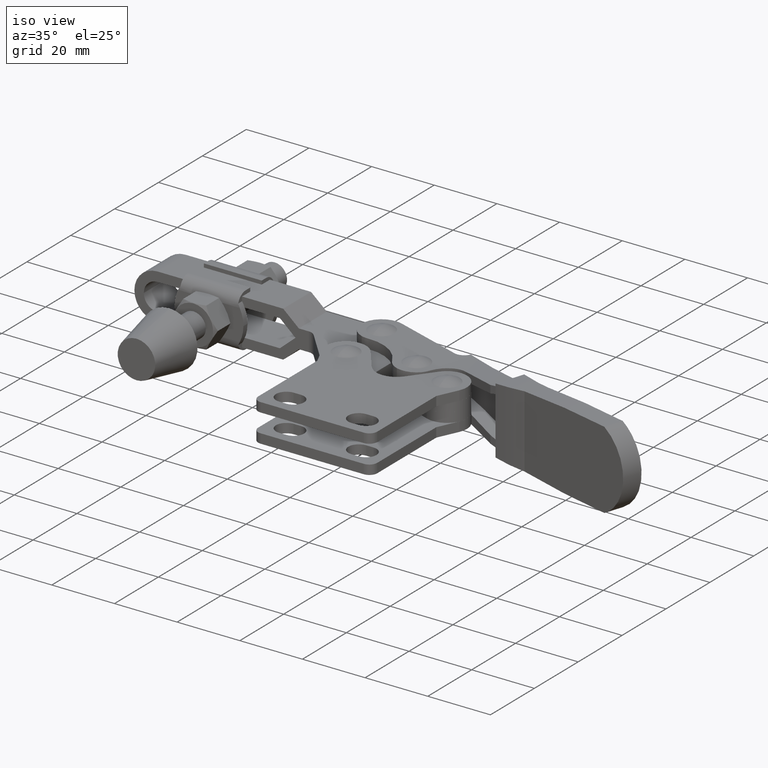
[diagram: clean part render]
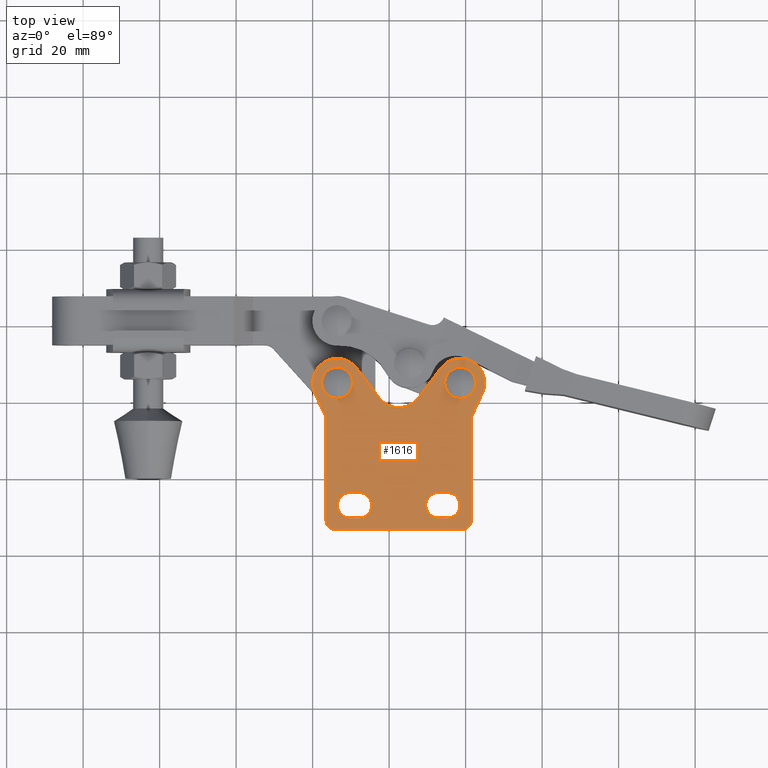
[diagram: tour spotlight — one face highlighted and labeled with its STEP entity id]
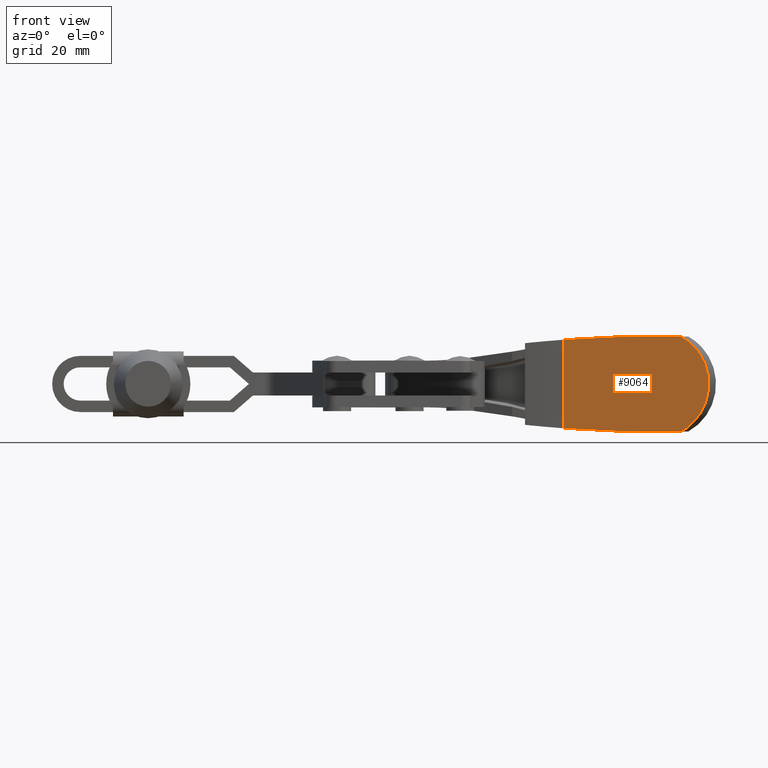
[diagram: tour spotlight — one face highlighted and labeled with its STEP entity id]
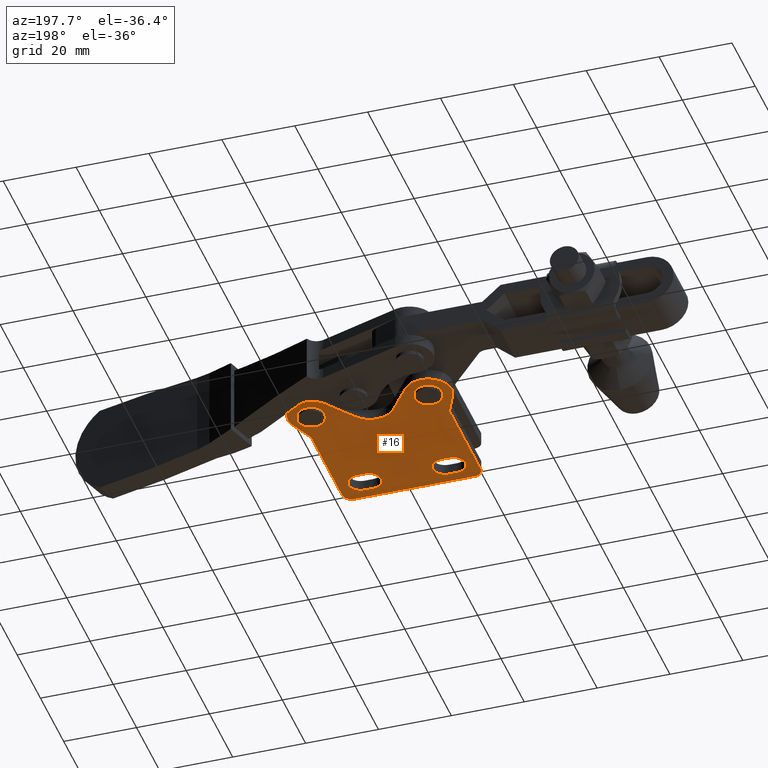
[diagram: tour spotlight — one face highlighted and labeled with its STEP entity id]
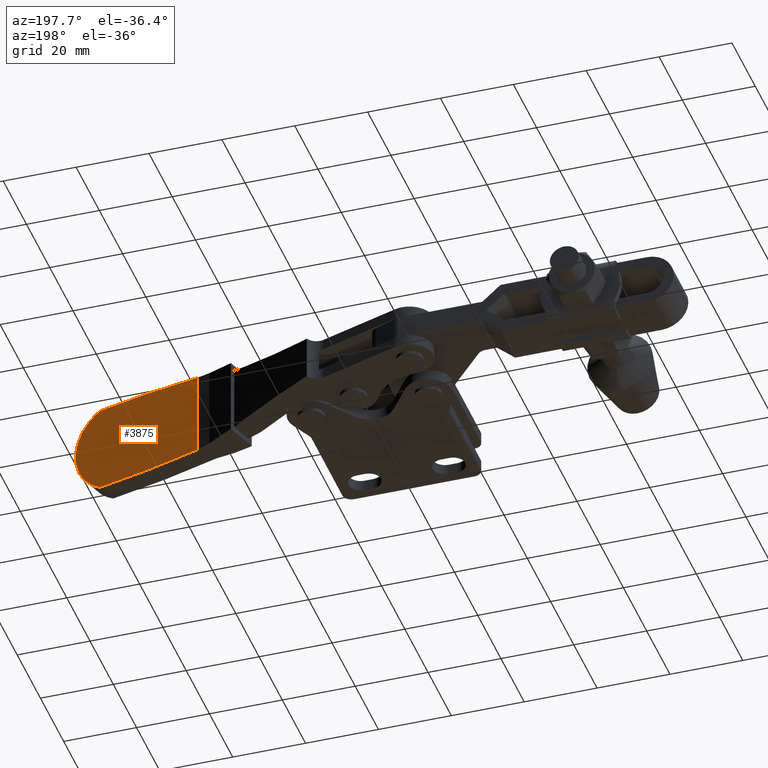
[diagram: tour spotlight — one face highlighted and labeled with its STEP entity id]
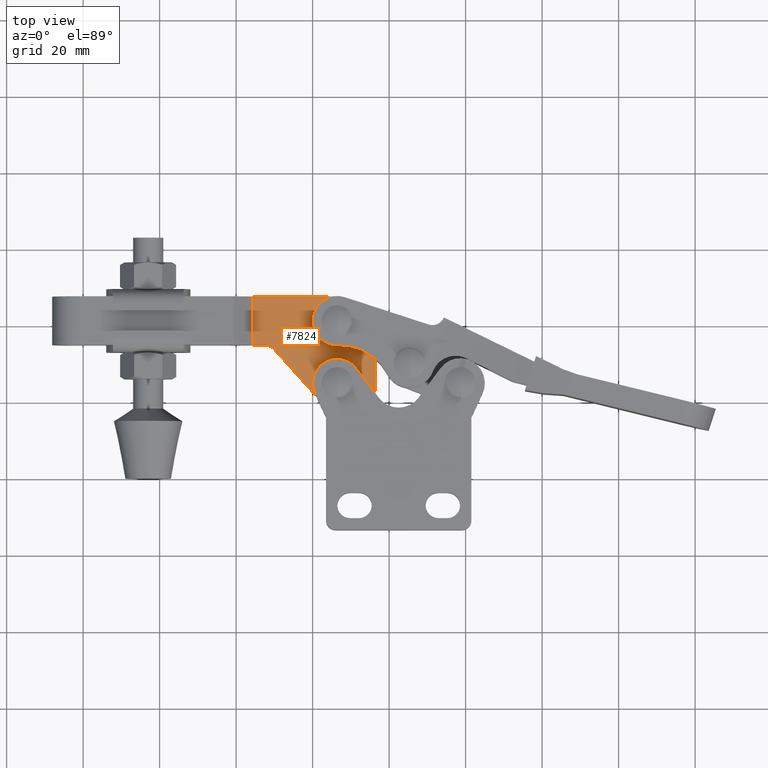
[diagram: tour spotlight — one face highlighted and labeled with its STEP entity id]
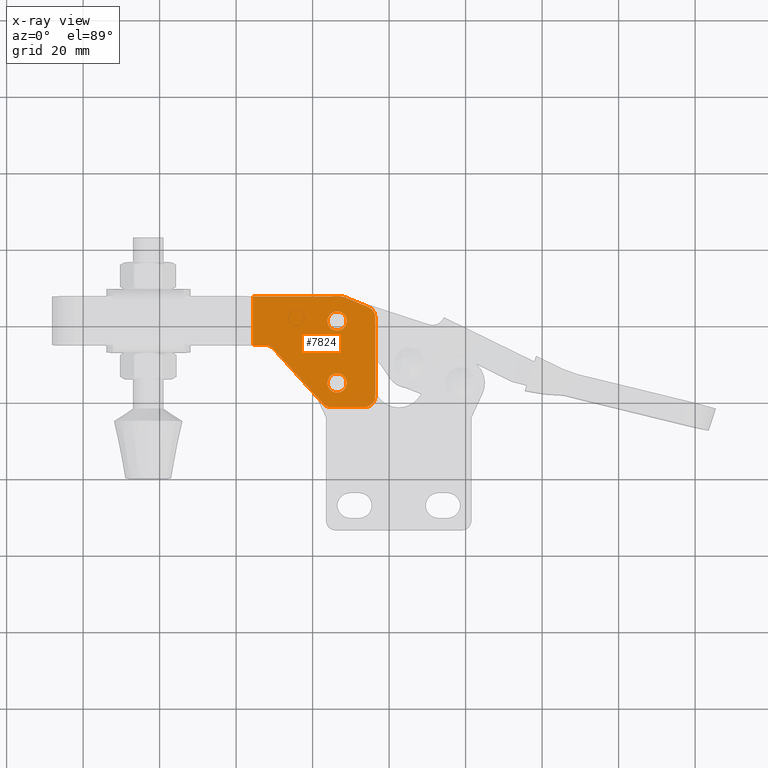
[diagram: x-ray of the same camera — body ghosted, this tour face saturated]
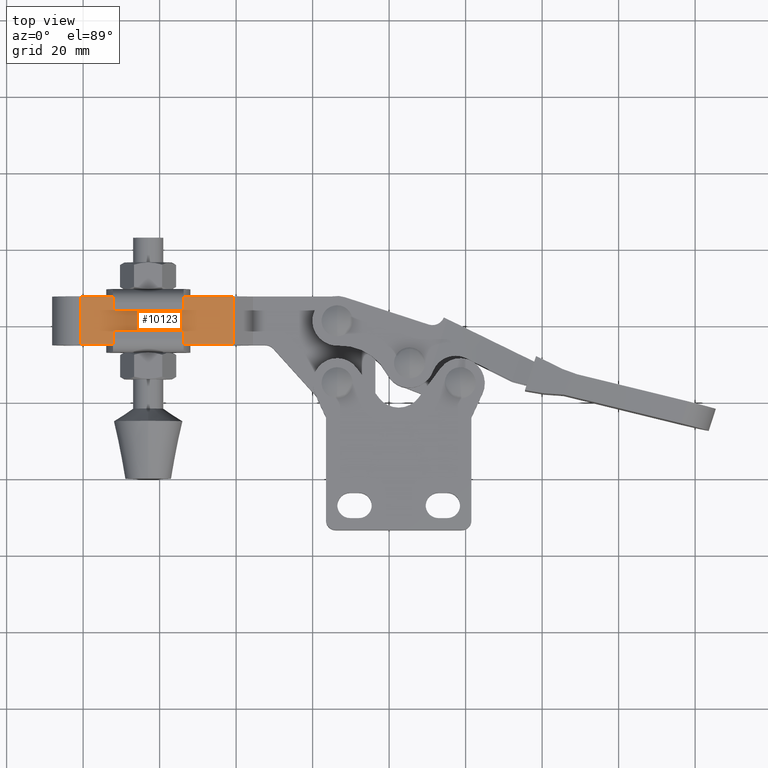
[diagram: tour spotlight — one face highlighted and labeled with its STEP entity id]
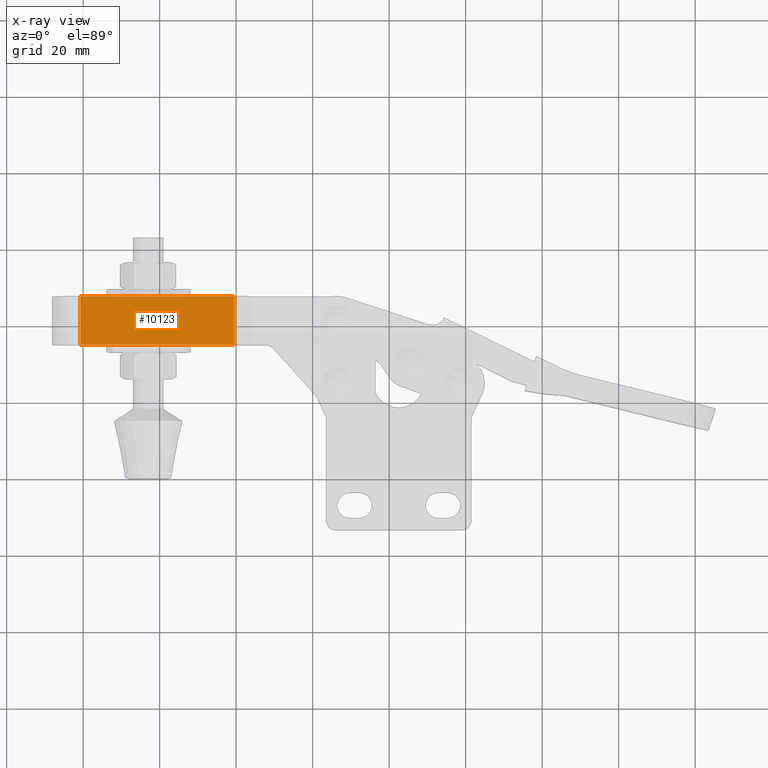
[diagram: x-ray of the same camera — body ghosted, this tour face saturated]
A machine part: a face-by-face anatomy tour. The part has 275 B-rep faces; the first image is the clean iso view, then the 6 largest visible faces are spotlighted one at a time (largest first), each with its STEP entity span.

Face 1 — top view, entity #1616. In plain terms, the highlighted planar face has unit normal (0, 0, 1).
Definition (entity closure, byte-faithful):
#101 = DIRECTION ( 'NONE',  ( 1.000000000000000000, 0.0000000000000000000, 0.0000000000000000000 ) ) ;
#264 = DIRECTION ( 'NONE',  ( -5.200436703295140800E-032, -1.372517863014621200E-016, 1.000000000000000000 ) ) ;
#273 = EDGE_CURVE ( 'NONE', #6558, #2426, #346, .T. ) ;
#322 = EDGE_CURVE ( 'NONE', #4853, #775, #1499, .T. ) ;
#346 = CIRCLE ( 'NONE', #5144, 2.499999999999946700 ) ;
#593 = DIRECTION ( 'NONE',  ( 1.000000000000000000, 0.0000000000000000000, 0.0000000000000000000 ) ) ;
#653 = DIRECTION ( 'NONE',  ( 0.4184571085544823200, 0.9082365596584527400, 0.0000000000000000000 ) ) ;
#658 = VERTEX_POINT ( 'NONE', #2529 ) ;
#659 = ORIENTED_EDGE ( 'NONE', *, *, #9443, .T. ) ;
#700 = LINE ( 'NONE', #4884, #9191 ) ;
#745 = EDGE_LOOP ( 'NONE', ( #4601, #6040, #6949, #2050, #3086 ) ) ;
#771 = AXIS2_PLACEMENT_3D ( 'NONE', #6879, #1971, #7728 ) ;
#775 = VERTEX_POINT ( 'NONE', #7261 ) ;
#778 = CARTESIAN_POINT ( 'NONE',  ( 33.47204968939409800, 28.82937373768376700, 5.995809861063778900 ) ) ;
#784 = CARTESIAN_POINT ( 'NONE',  ( 33.47204968939409800, 28.82937373768376700, 5.995809861063778900 ) ) ;
#802 = DIRECTION ( 'NONE',  ( 1.000000000000000000, 0.0000000000000000000, 0.0000000000000000000 ) ) ;
#839 = VERTEX_POINT ( 'NONE', #7672 ) ;
#862 = DIRECTION ( 'NONE',  ( 0.0000000000000000000, 1.000000000000000000, 0.0000000000000000000 ) ) ;
#926 = VERTEX_POINT ( 'NONE', #8561 ) ;
#947 = CARTESIAN_POINT ( 'NONE',  ( 32.89999999995356500, -10.39000292339765300, 5.995809861063778900 ) ) ;
#1013 = EDGE_CURVE ( 'NONE', #1683, #10645, #5072, .T. ) ;
#1035 = LINE ( 'NONE', #8556, #7346 ) ;
#1036 = CARTESIAN_POINT ( 'NONE',  ( 38.35084291770515800, 29.05560069988566600, 5.995809861063778000 ) ) ;
#1086 = EDGE_CURVE ( 'NONE', #10586, #4044, #2757, .T. ) ;
#1124 = AXIS2_PLACEMENT_3D ( 'NONE', #9695, #4750, #10497 ) ;
#1163 = EDGE_CURVE ( 'NONE', #7829, #658, #4147, .T. ) ;
#1182 = DIRECTION ( 'NONE',  ( 1.000000000000000000, 0.0000000000000000000, 0.0000000000000000000 ) ) ;
#1209 = FACE_BOUND ( 'NONE', #745, .T. ) ;
#1233 = EDGE_CURVE ( 'NONE', #926, #6558, #700, .T. ) ;
#1282 = AXIS2_PLACEMENT_3D ( 'NONE', #9147, #4202, #9958 ) ;
#1317 = AXIS2_PLACEMENT_3D ( 'NONE', #10646, #5705, #802 ) ;
#1431 = VERTEX_POINT ( 'NONE', #9178 ) ;
#1463 = FACE_BOUND ( 'NONE', #6531, .T. ) ;
#1499 = CIRCLE ( 'NONE', #7910, 3.350000000000000500 ) ;
#1510 = CARTESIAN_POINT ( 'NONE',  ( 35.19999999995356200, -7.040002923397662600, 5.995809861063778900 ) ) ;
#1541 = DIRECTION ( 'NONE',  ( 0.0000000000000000000, 0.0000000000000000000, 1.000000000000000000 ) ) ;
#1554 = EDGE_CURVE ( 'NONE', #1431, #926, #8538, .T. ) ;
#1616 = ADVANCED_FACE ( 'NONE', ( #1209, #7770, #1463, #9694, #9940 ), #2345, .T. ) ;
#1620 = EDGE_CURVE ( 'NONE', #9433, #839, #3134, .T. ) ;
#1680 = CARTESIAN_POINT ( 'NONE',  ( 12.09999999995355300, -10.39000292339765600, 5.995809861063778900 ) ) ;
#1683 = VERTEX_POINT ( 'NONE', #947 ) ;
#1685 = CARTESIAN_POINT ( 'NONE',  ( 0.5872860181398431600, 22.32187158185359300, 5.995809861063778900 ) ) ;
#1695 = CARTESIAN_POINT ( 'NONE',  ( 17.29192546579271500, 21.11078640519111700, 5.995809861063778900 ) ) ;
#1748 = ORIENTED_EDGE ( 'NONE', *, *, #9107, .F. ) ;
#1767 = DIRECTION ( 'NONE',  ( -1.000000000000000000, 1.885568995626967500E-016, -0.0000000000000000000 ) ) ;
#1881 = VECTOR ( 'NONE', #6801, 1000.000000000000000 ) ;
#1971 = DIRECTION ( 'NONE',  ( 0.0000000000000000000, 0.0000000000000000000, 1.000000000000000000 ) ) ;
#1994 = LINE ( 'NONE', #5764, #6349 ) ;
#2050 = ORIENTED_EDGE ( 'NONE', *, *, #4846, .F. ) ;
#2082 = AXIS2_PLACEMENT_3D ( 'NONE', #2238, #7985, #3076 ) ;
#2139 = LINE ( 'NONE', #5958, #1881 ) ;
#2153 = ORIENTED_EDGE ( 'NONE', *, *, #4459, .T. ) ;
#2238 = CARTESIAN_POINT ( 'NONE',  ( 12.09999999995355500, -7.040002923397655500, 5.995809861063778900 ) ) ;
#2302 = CIRCLE ( 'NONE', #7591, 6.400000000000044800 ) ;
#2330 = DIRECTION ( 'NONE',  ( 1.000000000000000000, 0.0000000000000000000, 0.0000000000000000000 ) ) ;
#2332 = DIRECTION ( 'NONE',  ( 1.000000000000000000, 0.0000000000000000000, 0.0000000000000000000 ) ) ;
#2345 = PLANE ( 'NONE',  #9972 ) ;
#2373 = VECTOR ( 'NONE', #1182, 1000.000000000000000 ) ;
#2381 = VECTOR ( 'NONE', #7245, 1000.000000000000100 ) ;
#2426 = VERTEX_POINT ( 'NONE', #5342 ) ;
#2456 = CARTESIAN_POINT ( 'NONE',  ( 9.799999999953556100, -3.690002923397659900, 5.995809861063778900 ) ) ;
#2529 = CARTESIAN_POINT ( 'NONE',  ( 32.89999999995356500, -3.690002923397668800, 5.995809861063778900 ) ) ;
#2608 = EDGE_CURVE ( 'NONE', #10177, #5794, #9933, .T. ) ;
#2640 = LINE ( 'NONE', #9678, #2381 ) ;
#2757 = CIRCLE ( 'NONE', #5429, 6.399999999999877800 ) ;
#2837 = DIRECTION ( 'NONE',  ( 6.867461292569963100E-034, -1.372517863014622400E-016, 1.000000000000000000 ) ) ;
#2841 = CARTESIAN_POINT ( 'NONE',  ( 32.89999999995356500, -3.690002923397668800, 5.995809861063778900 ) ) ;
#2852 = CARTESIAN_POINT ( 'NONE',  ( 44.41271398176737500, 22.32187158185346800, 5.995809861063778900 ) ) ;
#2857 = VERTEX_POINT ( 'NONE', #1695 ) ;
#2861 = VERTEX_POINT ( 'NONE', #2852 ) ;
#2941 = EDGE_CURVE ( 'NONE', #7509, #4853, #8319, .T. ) ;
#2981 = DIRECTION ( 'NONE',  ( 0.0000000000000000000, 0.0000000000000000000, 1.000000000000000000 ) ) ;
#2988 = DIRECTION ( 'NONE',  ( 1.000000000000000000, 0.0000000000000000000, 0.0000000000000000000 ) ) ;
#3008 = EDGE_CURVE ( 'NONE', #9677, #10586, #3192, .T. ) ;
#3076 = DIRECTION ( 'NONE',  ( 1.000000000000000000, 0.0000000000000000000, 0.0000000000000000000 ) ) ;
#3086 = ORIENTED_EDGE ( 'NONE', *, *, #1013, .F. ) ;
#3134 = CIRCLE ( 'NONE', #9445, 4.063249930782016700 ) ;
#3192 = CIRCLE ( 'NONE', #7459, 6.399999999999877800 ) ;
#3252 = DIRECTION ( 'NONE',  ( 0.9981181793552408300, 0.06131965460257621900, 0.0000000000000000000 ) ) ;
#3341 = LINE ( 'NONE', #6388, #3584 ) ;
#3351 = EDGE_CURVE ( 'NONE', #6477, #10279, #6116, .T. ) ;
#3405 = DIRECTION ( 'NONE',  ( 1.000000000000000000, 0.0000000000000000000, 0.0000000000000000000 ) ) ;
#3434 = CARTESIAN_POINT ( 'NONE',  ( 38.60000000002465700, 24.99999707670820500, 5.995809861063777100 ) ) ;
#3463 = AXIS2_PLACEMENT_3D ( 'NONE', #3434, #2837, #3252 ) ;
#3584 = VECTOR ( 'NONE', #653, 1000.000000000000100 ) ;
#3643 = DIRECTION ( 'NONE',  ( 0.0000000000000000000, 0.0000000000000000000, 1.000000000000000000 ) ) ;
#3740 = CARTESIAN_POINT ( 'NONE',  ( 38.84915708234415600, 20.94439345353074700, 5.995809861063777100 ) ) ;
#3788 = VERTEX_POINT ( 'NONE', #9534 ) ;
#3819 = ORIENTED_EDGE ( 'NONE', *, *, #1086, .T. ) ;
#3902 = VERTEX_POINT ( 'NONE', #6381 ) ;
#3908 = EDGE_CURVE ( 'NONE', #3902, #7829, #6495, .T. ) ;
#3925 = DIRECTION ( 'NONE',  ( -1.000000000000000000, 1.885568995626962800E-016, -0.0000000000000000000 ) ) ;
#3935 = EDGE_LOOP ( 'NONE', ( #7998, #5867 ) ) ;
#4044 = VERTEX_POINT ( 'NONE', #1685 ) ;
#4147 = LINE ( 'NONE', #2841, #7779 ) ;
#4202 = DIRECTION ( 'NONE',  ( 6.867461292569963100E-034, -1.372517863014622400E-016, 1.000000000000000000 ) ) ;
#4259 = CARTESIAN_POINT ( 'NONE',  ( 38.59999999995322600, 24.99999707660214600, 5.995809861063778900 ) ) ;
#4459 = EDGE_CURVE ( 'NONE', #6437, #5545, #10211, .T. ) ;
#4463 = EDGE_LOOP ( 'NONE', ( #6561, #5523, #2153, #7959, #9384, #6739, #3819, #10494, #10316, #9087, #8823, #8522, #659 ) ) ;
#4473 = ORIENTED_EDGE ( 'NONE', *, *, #322, .F. ) ;
#4601 = ORIENTED_EDGE ( 'NONE', *, *, #6662, .F. ) ;
#4607 = CARTESIAN_POINT ( 'NONE',  ( 12.09999999995355500, -7.040002923397655500, 5.995809861063778900 ) ) ;
#4718 = DIRECTION ( 'NONE',  ( 1.000000000000000000, 0.0000000000000000000, 0.0000000000000000000 ) ) ;
#4750 = DIRECTION ( 'NONE',  ( -0.0000000000000000000, -0.0000000000000000000, -1.000000000000000000 ) ) ;
#4756 = AXIS2_PLACEMENT_3D ( 'NONE', #1510, #7281, #2332 ) ;
#4846 = EDGE_CURVE ( 'NONE', #10645, #3902, #8923, .T. ) ;
#4853 = VERTEX_POINT ( 'NONE', #2456 ) ;
#4874 = DIRECTION ( 'NONE',  ( 1.000000000000000000, 0.0000000000000000000, 0.0000000000000000000 ) ) ;
#4884 = CARTESIAN_POINT ( 'NONE',  ( 5.999999999953487000, -13.44000292339766000, 5.995809861063778900 ) ) ;
#4927 = CARTESIAN_POINT ( 'NONE',  ( 3.499999999953540300, 15.99999707660246900, 5.995809861063778900 ) ) ;
#5016 = DIRECTION ( 'NONE',  ( 0.0000000000000000000, 0.0000000000000000000, 1.000000000000000000 ) ) ;
#5032 = DIRECTION ( 'NONE',  ( 1.000000000000000000, 0.0000000000000000000, -0.0000000000000000000 ) ) ;
#5072 = LINE ( 'NONE', #5761, #2373 ) ;
#5144 = AXIS2_PLACEMENT_3D ( 'NONE', #9554, #10642, #4874 ) ;
#5180 = CARTESIAN_POINT ( 'NONE',  ( 6.400000000025345400, 24.99999707674790300, 5.995809861063774400 ) ) ;
#5240 = CARTESIAN_POINT ( 'NONE',  ( 11.52795031051261000, 28.82937373768398000, 5.995809861063778900 ) ) ;
#5342 = CARTESIAN_POINT ( 'NONE',  ( 41.49999999995357300, -10.94000292339771400, 5.995809861063778900 ) ) ;
#5417 = CARTESIAN_POINT ( 'NONE',  ( 9.799999999953556100, -10.39000292339766100, 5.995809861063778900 ) ) ;
#5427 = ORIENTED_EDGE ( 'NONE', *, *, #8141, .F. ) ;
#5429 = AXIS2_PLACEMENT_3D ( 'NONE', #9743, #3643, #10366 ) ;
#5439 = DIRECTION ( 'NONE',  ( 1.000000000000000000, 0.0000000000000000000, 0.0000000000000000000 ) ) ;
#5502 = VERTEX_POINT ( 'NONE', #4927 ) ;
#5523 = ORIENTED_EDGE ( 'NONE', *, *, #6524, .T. ) ;
#5545 = VERTEX_POINT ( 'NONE', #6649 ) ;
#5563 = AXIS2_PLACEMENT_3D ( 'NONE', #6458, #1541, #2330 ) ;
#5608 = ORIENTED_EDGE ( 'NONE', *, *, #3351, .F. ) ;
#5705 = DIRECTION ( 'NONE',  ( 0.0000000000000000000, 0.0000000000000000000, 1.000000000000000000 ) ) ;
#5761 = CARTESIAN_POINT ( 'NONE',  ( 32.89999999995356500, -10.39000292339765300, 5.995809861063778900 ) ) ;
#5764 = CARTESIAN_POINT ( 'NONE',  ( 41.49999999995357300, -10.94000292339771400, 5.995809861063778900 ) ) ;
#5794 = VERTEX_POINT ( 'NONE', #3740 ) ;
#5867 = ORIENTED_EDGE ( 'NONE', *, *, #8966, .F. ) ;
#5897 = CIRCLE ( 'NONE', #1124, 6.499999999999859700 ) ;
#5958 = CARTESIAN_POINT ( 'NONE',  ( 3.499999999953540300, 15.99999707660246900, 5.995809861063778900 ) ) ;
#5991 = DIRECTION ( 'NONE',  ( 0.9999861848482947100, -0.005256435346520725600, 0.0000000000000000000 ) ) ;
#6040 = ORIENTED_EDGE ( 'NONE', *, *, #1163, .F. ) ;
#6116 = CIRCLE ( 'NONE', #2082, 3.350000000000000500 ) ;
#6174 = EDGE_CURVE ( 'NONE', #2857, #9677, #1035, .T. ) ;
#6254 = CARTESIAN_POINT ( 'NONE',  ( -4.599098879509711000E-011, 24.99999707660203200, 5.995809861063778900 ) ) ;
#6349 = VECTOR ( 'NONE', #862, 1000.000000000000000 ) ;
#6381 = CARTESIAN_POINT ( 'NONE',  ( 38.54999999995354900, -7.040002923397662600, 5.995809861063778900 ) ) ;
#6388 = CARTESIAN_POINT ( 'NONE',  ( 41.49999999995357300, 15.99999707660235900, 5.995809861063778900 ) ) ;
#6437 = VERTEX_POINT ( 'NONE', #784 ) ;
#6458 = CARTESIAN_POINT ( 'NONE',  ( 5.999999999953487000, -10.94000292339771400, 5.995809861063778900 ) ) ;
#6477 = VERTEX_POINT ( 'NONE', #1680 ) ;
#6495 = CIRCLE ( 'NONE', #4756, 3.349999999999991700 ) ;
#6517 = DIRECTION ( 'NONE',  ( -0.5983401032940101100, -0.8012422360248574500, 0.0000000000000000000 ) ) ;
#6524 = EDGE_CURVE ( 'NONE', #2861, #6437, #2302, .T. ) ;
#6528 = VECTOR ( 'NONE', #2988, 1000.000000000000000 ) ;
#6531 = EDGE_LOOP ( 'NONE', ( #7076, #1748 ) ) ;
#6558 = VERTEX_POINT ( 'NONE', #7513 ) ;
#6561 = ORIENTED_EDGE ( 'NONE', *, *, #7575, .T. ) ;
#6649 = CARTESIAN_POINT ( 'NONE',  ( 27.70807453411534700, 21.11078640519149000, 5.995809861063778900 ) ) ;
#6662 = EDGE_CURVE ( 'NONE', #658, #1683, #7970, .T. ) ;
#6739 = ORIENTED_EDGE ( 'NONE', *, *, #3008, .T. ) ;
#6743 = DIRECTION ( 'NONE',  ( 0.0000000000000000000, 0.0000000000000000000, 1.000000000000000000 ) ) ;
#6783 = AXIS2_PLACEMENT_3D ( 'NONE', #5180, #264, #5991 ) ;
#6801 = DIRECTION ( 'NONE',  ( 0.0000000000000000000, -1.000000000000000000, 0.0000000000000000000 ) ) ;
#6879 = CARTESIAN_POINT ( 'NONE',  ( 32.89999999995356500, -7.040002923397662600, 5.995809861063778900 ) ) ;
#6941 = EDGE_CURVE ( 'NONE', #5545, #2857, #5897, .T. ) ;
#6949 = ORIENTED_EDGE ( 'NONE', *, *, #3908, .F. ) ;
#6996 = CARTESIAN_POINT ( 'NONE',  ( 15.44999999995355600, -7.040002923397655500, 5.995809861063778900 ) ) ;
#7076 = ORIENTED_EDGE ( 'NONE', *, *, #1620, .F. ) ;
#7245 = DIRECTION ( 'NONE',  ( 0.4184571085544643300, -0.9082365596584610600, 0.0000000000000000000 ) ) ;
#7261 = CARTESIAN_POINT ( 'NONE',  ( 9.799999999953557900, -10.39000292339766000, 5.995809861063778900 ) ) ;
#7281 = DIRECTION ( 'NONE',  ( 0.0000000000000000000, 0.0000000000000000000, 1.000000000000000000 ) ) ;
#7321 = CARTESIAN_POINT ( 'NONE',  ( 9.799999999953556100, -3.690002923397659900, 5.995809861063778900 ) ) ;
#7346 = VECTOR ( 'NONE', #9387, 1000.000000000000100 ) ;
#7425 = CARTESIAN_POINT ( 'NONE',  ( 6.400000000025345400, 24.99999707674790300, 5.995809861063774400 ) ) ;
#7459 = AXIS2_PLACEMENT_3D ( 'NONE', #8905, #10356, #4718 ) ;
#7509 = VERTEX_POINT ( 'NONE', #9611 ) ;
#7513 = CARTESIAN_POINT ( 'NONE',  ( 38.99999999995363000, -13.44000292339766000, 5.995809861063778900 ) ) ;
#7545 = CIRCLE ( 'NONE', #1282, 4.063249930782014000 ) ;
#7575 = EDGE_CURVE ( 'NONE', #3788, #2861, #3341, .T. ) ;
#7591 = AXIS2_PLACEMENT_3D ( 'NONE', #9941, #5016, #101 ) ;
#7666 = CARTESIAN_POINT ( 'NONE',  ( 35.19999999995356200, -3.690002923397669200, 5.995809861063778900 ) ) ;
#7672 = CARTESIAN_POINT ( 'NONE',  ( 6.378641789467433700, 20.93680328038009000, 5.995809861063773600 ) ) ;
#7728 = DIRECTION ( 'NONE',  ( 1.000000000000000000, 0.0000000000000000000, 0.0000000000000000000 ) ) ;
#7770 = FACE_BOUND ( 'NONE', #8841, .T. ) ;
#7779 = VECTOR ( 'NONE', #1767, 1000.000000000000000 ) ;
#7829 = VERTEX_POINT ( 'NONE', #7666 ) ;
#7910 = AXIS2_PLACEMENT_3D ( 'NONE', #8667, #6743, #593 ) ;
#7926 = DIRECTION ( 'NONE',  ( -5.200436703295140800E-032, -1.372517863014621200E-016, 1.000000000000000000 ) ) ;
#7959 = ORIENTED_EDGE ( 'NONE', *, *, #6941, .T. ) ;
#7970 = CIRCLE ( 'NONE', #771, 3.349999999999991700 ) ;
#7985 = DIRECTION ( 'NONE',  ( 0.0000000000000000000, 0.0000000000000000000, 1.000000000000000000 ) ) ;
#7998 = ORIENTED_EDGE ( 'NONE', *, *, #2608, .F. ) ;
#8141 = EDGE_CURVE ( 'NONE', #775, #6477, #8733, .T. ) ;
#8186 = DIRECTION ( 'NONE',  ( 0.9999861848482947100, -0.005256435346520725600, 0.0000000000000000000 ) ) ;
#8187 = CARTESIAN_POINT ( 'NONE',  ( 6.421358210583257200, 29.06319087311571500, 5.995809861063775300 ) ) ;
#8319 = LINE ( 'NONE', #7321, #10496 ) ;
#8522 = ORIENTED_EDGE ( 'NONE', *, *, #273, .T. ) ;
#8538 = CIRCLE ( 'NONE', #5563, 2.499999999999946700 ) ;
#8556 = CARTESIAN_POINT ( 'NONE',  ( 17.29192546579271500, 21.11078640519111700, 5.995809861063778900 ) ) ;
#8561 = CARTESIAN_POINT ( 'NONE',  ( 5.999999999953487000, -13.44000292339766000, 5.995809861063778900 ) ) ;
#8667 = CARTESIAN_POINT ( 'NONE',  ( 9.799999999953556100, -7.040002923397653800, 5.995809861063778900 ) ) ;
#8733 = LINE ( 'NONE', #5417, #6528 ) ;
#8823 = ORIENTED_EDGE ( 'NONE', *, *, #1233, .T. ) ;
#8841 = EDGE_LOOP ( 'NONE', ( #4473, #10339, #9620, #5608, #5427 ) ) ;
#8850 = CARTESIAN_POINT ( 'NONE',  ( 35.19999999995356200, -10.39000292339765600, 5.995809861063778900 ) ) ;
#8905 = CARTESIAN_POINT ( 'NONE',  ( 6.399999999953887000, 24.99999707660203200, 5.995809861063778900 ) ) ;
#8923 = CIRCLE ( 'NONE', #1317, 3.349999999999991700 ) ;
#8966 = EDGE_CURVE ( 'NONE', #5794, #10177, #7545, .T. ) ;
#9087 = ORIENTED_EDGE ( 'NONE', *, *, #1554, .T. ) ;
#9094 = EDGE_CURVE ( 'NONE', #5502, #1431, #2139, .T. ) ;
#9107 = EDGE_CURVE ( 'NONE', #839, #9433, #10617, .T. ) ;
#9147 = CARTESIAN_POINT ( 'NONE',  ( 38.60000000002465700, 24.99999707670820500, 5.995809861063777100 ) ) ;
#9176 = CIRCLE ( 'NONE', #9423, 3.350000000000000500 ) ;
#9178 = CARTESIAN_POINT ( 'NONE',  ( 3.499999999953540300, -10.94000292339771400, 5.995809861063778900 ) ) ;
#9191 = VECTOR ( 'NONE', #3405, 1000.000000000000000 ) ;
#9321 = EDGE_CURVE ( 'NONE', #4044, #5502, #2640, .T. ) ;
#9384 = ORIENTED_EDGE ( 'NONE', *, *, #6174, .T. ) ;
#9387 = DIRECTION ( 'NONE',  ( -0.5983401032940690600, 0.8012422360248133700, 0.0000000000000000000 ) ) ;
#9423 = AXIS2_PLACEMENT_3D ( 'NONE', #4607, #10363, #5439 ) ;
#9433 = VERTEX_POINT ( 'NONE', #8187 ) ;
#9443 = EDGE_CURVE ( 'NONE', #2426, #3788, #1994, .T. ) ;
#9445 = AXIS2_PLACEMENT_3D ( 'NONE', #7425, #7926, #8186 ) ;
#9534 = CARTESIAN_POINT ( 'NONE',  ( 41.49999999995357300, 15.99999707660235900, 5.995809861063778900 ) ) ;
#9554 = CARTESIAN_POINT ( 'NONE',  ( 38.99999999995363000, -10.94000292339771400, 5.995809861063778900 ) ) ;
#9611 = CARTESIAN_POINT ( 'NONE',  ( 12.09999999995355700, -3.690002923397660300, 5.995809861063778900 ) ) ;
#9620 = ORIENTED_EDGE ( 'NONE', *, *, #10345, .F. ) ;
#9677 = VERTEX_POINT ( 'NONE', #5240 ) ;
#9678 = CARTESIAN_POINT ( 'NONE',  ( 0.5872860181398431600, 22.32187158185359300, 5.995809861063778900 ) ) ;
#9694 = FACE_BOUND ( 'NONE', #3935, .T. ) ;
#9695 = CARTESIAN_POINT ( 'NONE',  ( 22.49999999995388900, 24.99999707660247600, 5.995809861063778900 ) ) ;
#9743 = CARTESIAN_POINT ( 'NONE',  ( 6.399999999953887000, 24.99999707660203200, 5.995809861063778900 ) ) ;
#9933 = CIRCLE ( 'NONE', #3463, 4.063249930782014000 ) ;
#9940 = FACE_OUTER_BOUND ( 'NONE', #4463, .T. ) ;
#9941 = CARTESIAN_POINT ( 'NONE',  ( 38.59999999995322600, 24.99999707660214600, 5.995809861063778900 ) ) ;
#9949 = VECTOR ( 'NONE', #6517, 1000.000000000000000 ) ;
#9958 = DIRECTION ( 'NONE',  ( 0.9981181793552408300, 0.06131965460257621900, 0.0000000000000000000 ) ) ;
#9972 = AXIS2_PLACEMENT_3D ( 'NONE', #4259, #2981, #5032 ) ;
#10177 = VERTEX_POINT ( 'NONE', #1036 ) ;
#10211 = LINE ( 'NONE', #778, #9949 ) ;
#10279 = VERTEX_POINT ( 'NONE', #6996 ) ;
#10316 = ORIENTED_EDGE ( 'NONE', *, *, #9094, .T. ) ;
#10339 = ORIENTED_EDGE ( 'NONE', *, *, #2941, .F. ) ;
#10345 = EDGE_CURVE ( 'NONE', #10279, #7509, #9176, .T. ) ;
#10356 = DIRECTION ( 'NONE',  ( 0.0000000000000000000, 0.0000000000000000000, 1.000000000000000000 ) ) ;
#10363 = DIRECTION ( 'NONE',  ( 0.0000000000000000000, 0.0000000000000000000, 1.000000000000000000 ) ) ;
#10366 = DIRECTION ( 'NONE',  ( 1.000000000000000000, 0.0000000000000000000, 0.0000000000000000000 ) ) ;
#10494 = ORIENTED_EDGE ( 'NONE', *, *, #9321, .T. ) ;
#10496 = VECTOR ( 'NONE', #3925, 1000.000000000000000 ) ;
#10497 = DIRECTION ( 'NONE',  ( 1.000000000000000000, 0.0000000000000000000, 0.0000000000000000000 ) ) ;
#10586 = VERTEX_POINT ( 'NONE', #6254 ) ;
#10617 = CIRCLE ( 'NONE', #6783, 4.063249930782016700 ) ;
#10642 = DIRECTION ( 'NONE',  ( 0.0000000000000000000, 0.0000000000000000000, 1.000000000000000000 ) ) ;
#10645 = VERTEX_POINT ( 'NONE', #8850 ) ;
#10646 = CARTESIAN_POINT ( 'NONE',  ( 35.19999999995356200, -7.040002923397662600, 5.995809861063778900 ) ) ;

Face 2 — front view, entity #9064. In plain terms, the highlighted planar face has unit normal (0.2376, 0.9714, 0).
Definition (entity closure, byte-faithful):
#197 = CARTESIAN_POINT ( 'NONE',  ( 65.58622850458670000, 21.81455142387918800, 19.99580986106387200 ) ) ;
#638 = ORIENTED_EDGE ( 'NONE', *, *, #2472, .F. ) ;
#960 = VERTEX_POINT ( 'NONE', #2496 ) ;
#1020 = DIRECTION ( 'NONE',  ( -0.9713671142925046600, 0.2375835206218059000, 3.166985625919941000E-030 ) ) ;
#1295 = EDGE_LOOP ( 'NONE', ( #2006, #6510, #638, #7278 ) ) ;
#1298 = CARTESIAN_POINT ( 'NONE',  ( 86.07520526745189200, 16.80321929039907400, -12.64769986807520800 ) ) ;
#2006 = ORIENTED_EDGE ( 'NONE', *, *, #7434, .F. ) ;
#2052 = EDGE_CURVE ( 'NONE', #4806, #5793, #2488, .T. ) ;
#2472 = EDGE_CURVE ( 'NONE', #960, #5793, #3338, .T. ) ;
#2488 = LINE ( 'NONE', #6439, #9052 ) ;
#2496 = CARTESIAN_POINT ( 'NONE',  ( 96.33387897931697800, 14.29408367986270200, -12.43799414531151900 ) ) ;
#2912 = FACE_OUTER_BOUND ( 'NONE', #1295, .T. ) ;
#3301 = CARTESIAN_POINT ( 'NONE',  ( 107.3274531485024000, 11.60520115861903700, -6.403028343055676300 ) ) ;
#3338 =( BOUNDED_CURVE ( )  B_SPLINE_CURVE ( 3, ( #4637, #1298, #5845, #5281 ),
 .UNSPECIFIED., .F., .F. ) 
 B_SPLINE_CURVE_WITH_KNOTS ( ( 4, 4 ),
 ( 1.550885717419652000, 1.645467350796613500 ),
 .UNSPECIFIED. ) 
 CURVE ( )  GEOMETRIC_REPRESENTATION_ITEM ( )  RATIONAL_B_SPLINE_CURVE ( ( 1.000000000000000000, 0.9992546651414118100, 0.9992546651414118100, 1.000000000000000000 ) ) 
 REPRESENTATION_ITEM ( '' )  );
#3742 = CARTESIAN_POINT ( 'NONE',  ( 86.07520526745187800, 16.80321929039907800, 12.63931959020300500 ) ) ;
#3805 = VERTEX_POINT ( 'NONE', #5422 ) ;
#4480 = EDGE_CURVE ( 'NONE', #3805, #960, #6672, .T. ) ;
#4637 = CARTESIAN_POINT ( 'NONE',  ( 96.33387897931697800, 14.29408367986270200, -12.43799414531151900 ) ) ;
#4806 = VERTEX_POINT ( 'NONE', #10611 ) ;
#5281 = CARTESIAN_POINT ( 'NONE',  ( 65.58622850458670000, 21.81455142387918800, -11.57355518563012400 ) ) ;
#5422 = CARTESIAN_POINT ( 'NONE',  ( 96.33387897931717700, 14.29408367986264800, 12.42961386743927000 ) ) ;
#5679 = CARTESIAN_POINT ( 'NONE',  ( 107.3274531485024700, 11.60520115861901800, 6.394648065183190500 ) ) ;
#5793 = VERTEX_POINT ( 'NONE', #8675 ) ;
#5845 = CARTESIAN_POINT ( 'NONE',  ( 75.81834364603564300, 19.31191168763103900, -12.35933862249322200 ) ) ;
#5852 = PLANE ( 'NONE',  #6230 ) ;
#5922 = DIRECTION ( 'NONE',  ( 0.2375835206218059300, 0.9713671142925047700, 2.334566883193609400E-031 ) ) ;
#6181 = CARTESIAN_POINT ( 'NONE',  ( 65.58622850458670000, 21.81455142387918800, 11.56517490775778100 ) ) ;
#6230 = AXIS2_PLACEMENT_3D ( 'NONE', #197, #5922, #1020 ) ;
#6439 = CARTESIAN_POINT ( 'NONE',  ( 65.58622850458670000, 21.81455142387918800, 19.99580986106387200 ) ) ;
#6510 = ORIENTED_EDGE ( 'NONE', *, *, #2052, .T. ) ;
#6672 =( BOUNDED_CURVE ( )  B_SPLINE_CURVE ( 3, ( #10651, #5679, #3301, #9046 ),
 .UNSPECIFIED., .F., .F. ) 
 B_SPLINE_CURVE_WITH_KNOTS ( ( 4, 4 ),
 ( 5.203456250220080300, 7.362914364139105500 ),
 .UNSPECIFIED. ) 
 CURVE ( )  GEOMETRIC_REPRESENTATION_ITEM ( )  RATIONAL_B_SPLINE_CURVE ( ( 1.000000000000000000, 0.6477115381336379100, 0.6477115381336379100, 1.000000000000000000 ) ) 
 REPRESENTATION_ITEM ( '' )  );
#7028 = CARTESIAN_POINT ( 'NONE',  ( 75.81834364603555800, 19.31191168763106000, 12.35095834462097700 ) ) ;
#7278 = ORIENTED_EDGE ( 'NONE', *, *, #4480, .F. ) ;
#7434 = EDGE_CURVE ( 'NONE', #4806, #3805, #8460, .T. ) ;
#8460 =( BOUNDED_CURVE ( )  B_SPLINE_CURVE ( 3, ( #6181, #7028, #3742, #9508 ),
 .UNSPECIFIED., .F., .F. ) 
 B_SPLINE_CURVE_WITH_KNOTS ( ( 4, 4 ),
 ( 4.637717956382972200, 4.732299589759934500 ),
 .UNSPECIFIED. ) 
 CURVE ( )  GEOMETRIC_REPRESENTATION_ITEM ( )  RATIONAL_B_SPLINE_CURVE ( ( 1.000000000000000000, 0.9992546651414118100, 0.9992546651414118100, 1.000000000000000000 ) ) 
 REPRESENTATION_ITEM ( '' )  );
#8675 = CARTESIAN_POINT ( 'NONE',  ( 65.58622850458670000, 21.81455142387918800, -11.57355518563012400 ) ) ;
#9046 = CARTESIAN_POINT ( 'NONE',  ( 96.33387897931697800, 14.29408367986270200, -12.43799414531151900 ) ) ;
#9052 = VECTOR ( 'NONE', #10390, 1000.000000000000000 ) ;
#9064 = ADVANCED_FACE ( 'NONE', ( #2912 ), #5852, .F. ) ;
#9508 = CARTESIAN_POINT ( 'NONE',  ( 96.33387897931717700, 14.29408367986264800, 12.42961386743927000 ) ) ;
#10390 = DIRECTION ( 'NONE',  ( 0.0000000000000000000, 5.423418723394456200E-031, -1.000000000000000000 ) ) ;
#10611 = CARTESIAN_POINT ( 'NONE',  ( 65.58622850458670000, 21.81455142387918800, 11.56517490775778100 ) ) ;
#10651 = CARTESIAN_POINT ( 'NONE',  ( 96.33387897931717700, 14.29408367986264800, 12.42961386743927000 ) ) ;

Face 3 — auxiliary view, entity #16. In plain terms, the highlighted planar face has unit normal (0, 0, 1).
Definition (entity closure, byte-faithful):
#16 = ADVANCED_FACE ( 'NONE', ( #1260, #9745, #7560, #5358, #3191 ), #282, .F. ) ;
#23 = CARTESIAN_POINT ( 'NONE',  ( 27.70807453411534700, 21.11078640519149000, -6.004190138936538200 ) ) ;
#79 = VECTOR ( 'NONE', #6061, 1000.000000000000000 ) ;
#90 = EDGE_CURVE ( 'NONE', #8642, #3354, #4841, .T. ) ;
#199 = DIRECTION ( 'NONE',  ( 1.000000000000000000, 0.0000000000000000000, -0.0000000000000000000 ) ) ;
#282 = PLANE ( 'NONE',  #4800 ) ;
#300 = EDGE_LOOP ( 'NONE', ( #3843, #8109, #5408, #5248, #2619 ) ) ;
#324 = CARTESIAN_POINT ( 'NONE',  ( 15.44999999995355600, -7.040002923397655500, -6.004190138936538200 ) ) ;
#550 = DIRECTION ( 'NONE',  ( -0.0000000000000000000, -0.0000000000000000000, -1.000000000000000000 ) ) ;
#564 = CIRCLE ( 'NONE', #1721, 6.499999999999859700 ) ;
#589 = CARTESIAN_POINT ( 'NONE',  ( -4.599098879509711000E-011, 24.99999707660203200, -6.004190138936538200 ) ) ;
#610 = CARTESIAN_POINT ( 'NONE',  ( 17.29192546579271500, 21.11078640519111700, -6.004190138936538200 ) ) ;
#625 = DIRECTION ( 'NONE',  ( 0.0000000000000000000, 0.0000000000000000000, 1.000000000000000000 ) ) ;
#634 = LINE ( 'NONE', #1819, #6933 ) ;
#736 = CIRCLE ( 'NONE', #8286, 3.349999999999991700 ) ;
#764 = VERTEX_POINT ( 'NONE', #2515 ) ;
#767 = DIRECTION ( 'NONE',  ( 1.000000000000000000, 0.0000000000000000000, 0.0000000000000000000 ) ) ;
#879 = DIRECTION ( 'NONE',  ( 0.0000000000000000000, 0.0000000000000000000, 1.000000000000000000 ) ) ;
#902 = VERTEX_POINT ( 'NONE', #4375 ) ;
#952 = EDGE_CURVE ( 'NONE', #6937, #6176, #3424, .T. ) ;
#1084 = CARTESIAN_POINT ( 'NONE',  ( 33.47204968939409800, 28.82937373768376700, -6.004190138936538200 ) ) ;
#1156 = CARTESIAN_POINT ( 'NONE',  ( 38.59999999995321900, -3.690002923397668800, -6.004190138936538200 ) ) ;
#1194 = CARTESIAN_POINT ( 'NONE',  ( 41.49999999995357300, 15.99999707660235900, -6.004190138936538200 ) ) ;
#1227 = VECTOR ( 'NONE', #7139, 1000.000000000000000 ) ;
#1230 = DIRECTION ( 'NONE',  ( 1.000000000000000000, 0.0000000000000000000, 0.0000000000000000000 ) ) ;
#1247 = CARTESIAN_POINT ( 'NONE',  ( 32.89999999995356500, -10.39000292339765300, -6.004190138936538200 ) ) ;
#1260 = FACE_BOUND ( 'NONE', #300, .T. ) ;
#1310 = CARTESIAN_POINT ( 'NONE',  ( 38.60000000002465700, 24.99999707670820500, -6.004190138936535500 ) ) ;
#1367 = EDGE_CURVE ( 'NONE', #6176, #4254, #5187, .T. ) ;
#1387 = DIRECTION ( 'NONE',  ( -0.0000000000000000000, -0.0000000000000000000, -1.000000000000000000 ) ) ;
#1438 = EDGE_CURVE ( 'NONE', #4887, #9295, #564, .T. ) ;
#1471 = VECTOR ( 'NONE', #8767, 1000.000000000000000 ) ;
#1574 = EDGE_CURVE ( 'NONE', #4193, #4887, #8009, .T. ) ;
#1684 = DIRECTION ( 'NONE',  ( 1.000000000000000000, 0.0000000000000000000, 0.0000000000000000000 ) ) ;
#1721 = AXIS2_PLACEMENT_3D ( 'NONE', #10488, #1387, #7579 ) ;
#1785 = ORIENTED_EDGE ( 'NONE', *, *, #1367, .F. ) ;
#1811 = DIRECTION ( 'NONE',  ( 0.4184571085544823200, 0.9082365596584527400, 0.0000000000000000000 ) ) ;
#1819 = CARTESIAN_POINT ( 'NONE',  ( 38.59999999995322600, -10.39000292339765300, -6.004190138936538200 ) ) ;
#1884 = CARTESIAN_POINT ( 'NONE',  ( 35.19999999995356200, -7.040002923397662600, -6.004190138936538200 ) ) ;
#2024 = CARTESIAN_POINT ( 'NONE',  ( 38.59999999995322600, -10.39000292339766000, -6.004190138936538200 ) ) ;
#2066 = AXIS2_PLACEMENT_3D ( 'NONE', #7823, #2900, #8648 ) ;
#2132 = DIRECTION ( 'NONE',  ( 1.000000000000000000, 0.0000000000000000000, 0.0000000000000000000 ) ) ;
#2199 = CARTESIAN_POINT ( 'NONE',  ( 12.09999999995355100, -10.39000292339766000, -6.004190138936538200 ) ) ;
#2251 = ORIENTED_EDGE ( 'NONE', *, *, #10504, .F. ) ;
#2280 = CARTESIAN_POINT ( 'NONE',  ( 3.499999999953540300, 15.99999707660246900, -6.004190138936538200 ) ) ;
#2315 = EDGE_CURVE ( 'NONE', #4254, #3705, #6463, .T. ) ;
#2334 = ORIENTED_EDGE ( 'NONE', *, *, #7399, .T. ) ;
#2462 = VERTEX_POINT ( 'NONE', #4087 ) ;
#2510 = CARTESIAN_POINT ( 'NONE',  ( 38.60000000002465700, 24.99999707670820500, -6.004190138936535500 ) ) ;
#2515 = CARTESIAN_POINT ( 'NONE',  ( 2.725050770707862800, 25.01931447664636800, -6.004190138936535500 ) ) ;
#2609 = DIRECTION ( 'NONE',  ( 1.000000000000000000, 0.0000000000000000000, -0.0000000000000000000 ) ) ;
#2619 = ORIENTED_EDGE ( 'NONE', *, *, #9086, .T. ) ;
#2674 = CARTESIAN_POINT ( 'NONE',  ( 5.999999999953487000, -13.44000292339766000, -6.004190138936538200 ) ) ;
#2684 = CARTESIAN_POINT ( 'NONE',  ( 32.89999999995356500, -3.690002923397668800, -6.004190138936538200 ) ) ;
#2686 = ORIENTED_EDGE ( 'NONE', *, *, #3679, .F. ) ;
#2706 = DIRECTION ( 'NONE',  ( 1.000000000000000000, 0.0000000000000000000, 0.0000000000000000000 ) ) ;
#2719 = CARTESIAN_POINT ( 'NONE',  ( 38.59999999995322600, 24.99999707660214600, -6.004190138936538200 ) ) ;
#2728 = EDGE_CURVE ( 'NONE', #3705, #902, #10570, .T. ) ;
#2776 = VERTEX_POINT ( 'NONE', #5879 ) ;
#2784 = CARTESIAN_POINT ( 'NONE',  ( 6.399999999953887000, 24.99999707660203200, -6.004190138936538200 ) ) ;
#2793 = CARTESIAN_POINT ( 'NONE',  ( 5.999999999953487000, -13.44000292339766000, -6.004190138936538200 ) ) ;
#2879 = DIRECTION ( 'NONE',  ( 0.0000000000000000000, 0.0000000000000000000, 1.000000000000000000 ) ) ;
#2895 = VERTEX_POINT ( 'NONE', #7196 ) ;
#2900 = DIRECTION ( 'NONE',  ( 0.0000000000000000000, 0.0000000000000000000, 1.000000000000000000 ) ) ;
#2947 = CIRCLE ( 'NONE', #7818, 3.349999999999991700 ) ;
#2991 = ORIENTED_EDGE ( 'NONE', *, *, #4610, .F. ) ;
#3047 = VECTOR ( 'NONE', #1811, 1000.000000000000100 ) ;
#3191 = FACE_OUTER_BOUND ( 'NONE', #5027, .T. ) ;
#3205 = CIRCLE ( 'NONE', #10409, 3.674999999999997600 ) ;
#3282 = CARTESIAN_POINT ( 'NONE',  ( 9.799999999953556100, -3.690002923397659900, -6.004190138936538200 ) ) ;
#3354 = VERTEX_POINT ( 'NONE', #589 ) ;
#3358 = DIRECTION ( 'NONE',  ( 1.000000000000000000, 0.0000000000000000000, 0.0000000000000000000 ) ) ;
#3396 = DIRECTION ( 'NONE',  ( 0.0000000000000000000, 0.0000000000000000000, 1.000000000000000000 ) ) ;
#3423 = EDGE_CURVE ( 'NONE', #2462, #764, #7551, .T. ) ;
#3424 = LINE ( 'NONE', #5127, #1227 ) ;
#3509 = ORIENTED_EDGE ( 'NONE', *, *, #4686, .T. ) ;
#3515 = LINE ( 'NONE', #4745, #7630 ) ;
#3547 = DIRECTION ( 'NONE',  ( 1.000000000000000000, 0.0000000000000000000, 0.0000000000000000000 ) ) ;
#3549 = EDGE_CURVE ( 'NONE', #7920, #8755, #5217, .T. ) ;
#3606 = EDGE_LOOP ( 'NONE', ( #10218, #9090, #2334, #10126, #3509 ) ) ;
#3609 = CIRCLE ( 'NONE', #8962, 3.674999999999999400 ) ;
#3619 = DIRECTION ( 'NONE',  ( -1.000000000000000000, 1.885568995626967700E-016, 0.0000000000000000000 ) ) ;
#3634 = VECTOR ( 'NONE', #4906, 1000.000000000000000 ) ;
#3679 = EDGE_CURVE ( 'NONE', #902, #7920, #10478, .T. ) ;
#3705 = VERTEX_POINT ( 'NONE', #10209 ) ;
#3771 = LINE ( 'NONE', #7645, #10076 ) ;
#3825 = ORIENTED_EDGE ( 'NONE', *, *, #2728, .F. ) ;
#3843 = ORIENTED_EDGE ( 'NONE', *, *, #9703, .T. ) ;
#3919 = DIRECTION ( 'NONE',  ( 0.4184571085544643300, -0.9082365596584610600, 0.0000000000000000000 ) ) ;
#3968 = EDGE_LOOP ( 'NONE', ( #6834, #10577 ) ) ;
#3992 = VERTEX_POINT ( 'NONE', #3282 ) ;
#4035 = LINE ( 'NONE', #1156, #5955 ) ;
#4045 = ORIENTED_EDGE ( 'NONE', *, *, #3549, .F. ) ;
#4052 = CIRCLE ( 'NONE', #5664, 3.349999999999991700 ) ;
#4087 = CARTESIAN_POINT ( 'NONE',  ( 10.07494922934282900, 24.98067967684944100, -6.004190138936535500 ) ) ;
#4193 = VERTEX_POINT ( 'NONE', #1084 ) ;
#4254 = VERTEX_POINT ( 'NONE', #2793 ) ;
#4274 = VECTOR ( 'NONE', #1230, 1000.000000000000000 ) ;
#4345 = CARTESIAN_POINT ( 'NONE',  ( 34.93191569089415100, 24.77464734604373600, -6.004190138936535500 ) ) ;
#4359 = ORIENTED_EDGE ( 'NONE', *, *, #5844, .F. ) ;
#4375 = CARTESIAN_POINT ( 'NONE',  ( 41.49999999995357300, -10.94000292339771400, -6.004190138936538200 ) ) ;
#4407 = VERTEX_POINT ( 'NONE', #6336 ) ;
#4437 = AXIS2_PLACEMENT_3D ( 'NONE', #2719, #8469, #3547 ) ;
#4485 = EDGE_LOOP ( 'NONE', ( #7856, #4359 ) ) ;
#4512 = CARTESIAN_POINT ( 'NONE',  ( 12.09999999995355500, -7.040002923397655500, -6.004190138936538200 ) ) ;
#4610 = EDGE_CURVE ( 'NONE', #9295, #8642, #3771, .T. ) ;
#4648 = CARTESIAN_POINT ( 'NONE',  ( 38.59999999995322600, 24.99999707660214600, -6.004190138936538200 ) ) ;
#4667 = CIRCLE ( 'NONE', #2066, 3.350000000000000500 ) ;
#4686 = EDGE_CURVE ( 'NONE', #9691, #5828, #4667, .T. ) ;
#4745 = CARTESIAN_POINT ( 'NONE',  ( 0.5872860181398431600, 22.32187158185359300, -6.004190138936538200 ) ) ;
#4774 = CARTESIAN_POINT ( 'NONE',  ( 35.19999999995356200, -3.690002923397669200, -6.004190138936538200 ) ) ;
#4800 = AXIS2_PLACEMENT_3D ( 'NONE', #4648, #8042, #2609 ) ;
#4841 = CIRCLE ( 'NONE', #7015, 6.399999999999877800 ) ;
#4848 = VERTEX_POINT ( 'NONE', #4857 ) ;
#4857 = CARTESIAN_POINT ( 'NONE',  ( 35.19999999995356200, -10.39000292339765300, -6.004190138936538200 ) ) ;
#4887 = VERTEX_POINT ( 'NONE', #23 ) ;
#4906 = DIRECTION ( 'NONE',  ( -0.5983401032940101100, -0.8012422360248574500, 0.0000000000000000000 ) ) ;
#4939 = DIRECTION ( 'NONE',  ( 1.000000000000000000, 0.0000000000000000000, 0.0000000000000000000 ) ) ;
#5027 = EDGE_LOOP ( 'NONE', ( #4045, #2686, #3825, #7514, #1785, #9856, #5034, #2251, #9589, #2991, #10285, #10544, #7086 ) ) ;
#5034 = ORIENTED_EDGE ( 'NONE', *, *, #10444, .F. ) ;
#5061 = AXIS2_PLACEMENT_3D ( 'NONE', #8294, #3396, #9132 ) ;
#5127 = CARTESIAN_POINT ( 'NONE',  ( 3.499999999953540300, 15.99999707660246900, -6.004190138936538200 ) ) ;
#5187 = CIRCLE ( 'NONE', #9644, 2.499999999999946700 ) ;
#5217 = LINE ( 'NONE', #9992, #3047 ) ;
#5248 = ORIENTED_EDGE ( 'NONE', *, *, #8061, .T. ) ;
#5286 = VERTEX_POINT ( 'NONE', #5522 ) ;
#5348 = DIRECTION ( 'NONE',  ( 1.000000000000000000, 0.0000000000000000000, 0.0000000000000000000 ) ) ;
#5358 = FACE_BOUND ( 'NONE', #4485, .T. ) ;
#5375 = AXIS2_PLACEMENT_3D ( 'NONE', #10609, #5670, #767 ) ;
#5408 = ORIENTED_EDGE ( 'NONE', *, *, #7243, .T. ) ;
#5463 = CARTESIAN_POINT ( 'NONE',  ( 6.400000000025345400, 24.99999707674790300, -6.004190138936535500 ) ) ;
#5522 = CARTESIAN_POINT ( 'NONE',  ( 42.26808430915516400, 25.22534680737267400, -6.004190138936535500 ) ) ;
#5537 = CARTESIAN_POINT ( 'NONE',  ( 32.89999999995356500, -7.040002923397662600, -6.004190138936538200 ) ) ;
#5572 = CARTESIAN_POINT ( 'NONE',  ( 44.41271398176737500, 22.32187158185346800, -6.004190138936538200 ) ) ;
#5664 = AXIS2_PLACEMENT_3D ( 'NONE', #1884, #7638, #2706 ) ;
#5670 = DIRECTION ( 'NONE',  ( -0.0000000000000000000, -0.0000000000000000000, -1.000000000000000000 ) ) ;
#5671 = VERTEX_POINT ( 'NONE', #4345 ) ;
#5779 = CARTESIAN_POINT ( 'NONE',  ( 6.399999999953887000, 24.99999707660203200, -6.004190138936538200 ) ) ;
#5780 = CIRCLE ( 'NONE', #6751, 3.674999999999997600 ) ;
#5792 = EDGE_CURVE ( 'NONE', #5671, #5286, #5780, .T. ) ;
#5828 = VERTEX_POINT ( 'NONE', #9541 ) ;
#5844 = EDGE_CURVE ( 'NONE', #764, #2462, #3609, .T. ) ;
#5879 = CARTESIAN_POINT ( 'NONE',  ( 0.5872860181398431600, 22.32187158185359300, -6.004190138936538200 ) ) ;
#5884 = VERTEX_POINT ( 'NONE', #2199 ) ;
#5921 = VERTEX_POINT ( 'NONE', #4774 ) ;
#5955 = VECTOR ( 'NONE', #3619, 1000.000000000000000 ) ;
#6061 = DIRECTION ( 'NONE',  ( 0.0000000000000000000, 1.000000000000000000, 0.0000000000000000000 ) ) ;
#6069 = CIRCLE ( 'NONE', #4437, 6.400000000000044800 ) ;
#6095 = CARTESIAN_POINT ( 'NONE',  ( 3.499999999953540300, -10.94000292339771400, -6.004190138936538200 ) ) ;
#6176 = VERTEX_POINT ( 'NONE', #6095 ) ;
#6287 = DIRECTION ( 'NONE',  ( 1.000000000000000000, 0.0000000000000000000, 0.0000000000000000000 ) ) ;
#6336 = CARTESIAN_POINT ( 'NONE',  ( 9.799999999953556100, -10.39000292339766100, -6.004190138936538200 ) ) ;
#6362 = DIRECTION ( 'NONE',  ( 1.000000000000000000, 0.0000000000000000000, 0.0000000000000000000 ) ) ;
#6411 = VECTOR ( 'NONE', #7786, 1000.000000000000000 ) ;
#6463 = LINE ( 'NONE', #2674, #4274 ) ;
#6604 = DIRECTION ( 'NONE',  ( 0.0000000000000000000, 0.0000000000000000000, 1.000000000000000000 ) ) ;
#6611 = DIRECTION ( 'NONE',  ( 1.000000000000000000, 0.0000000000000000000, 0.0000000000000000000 ) ) ;
#6751 = AXIS2_PLACEMENT_3D ( 'NONE', #1310, #7060, #2132 ) ;
#6808 = DIRECTION ( 'NONE',  ( -0.5983401032940690600, 0.8012422360248133700, 0.0000000000000000000 ) ) ;
#6834 = ORIENTED_EDGE ( 'NONE', *, *, #7684, .F. ) ;
#6933 = VECTOR ( 'NONE', #199, 1000.000000000000000 ) ;
#6937 = VERTEX_POINT ( 'NONE', #2280 ) ;
#7009 = AXIS2_PLACEMENT_3D ( 'NONE', #5779, #879, #6611 ) ;
#7015 = AXIS2_PLACEMENT_3D ( 'NONE', #2784, #9100, #4939 ) ;
#7060 = DIRECTION ( 'NONE',  ( -0.0000000000000000000, -0.0000000000000000000, -1.000000000000000000 ) ) ;
#7063 = CIRCLE ( 'NONE', #8919, 3.350000000000000500 ) ;
#7086 = ORIENTED_EDGE ( 'NONE', *, *, #10181, .F. ) ;
#7139 = DIRECTION ( 'NONE',  ( 0.0000000000000000000, -1.000000000000000000, 0.0000000000000000000 ) ) ;
#7196 = CARTESIAN_POINT ( 'NONE',  ( 38.54999999995354900, -7.040002923397662600, -6.004190138936538200 ) ) ;
#7243 = EDGE_CURVE ( 'NONE', #10260, #4848, #634, .T. ) ;
#7279 = DIRECTION ( 'NONE',  ( 0.0000000000000000000, 0.0000000000000000000, 1.000000000000000000 ) ) ;
#7381 = CIRCLE ( 'NONE', #7009, 6.399999999999877800 ) ;
#7399 = EDGE_CURVE ( 'NONE', #4407, #5884, #7581, .T. ) ;
#7514 = ORIENTED_EDGE ( 'NONE', *, *, #2315, .F. ) ;
#7551 = CIRCLE ( 'NONE', #5375, 3.674999999999999400 ) ;
#7560 = FACE_BOUND ( 'NONE', #3968, .T. ) ;
#7579 = DIRECTION ( 'NONE',  ( 1.000000000000000000, 0.0000000000000000000, 0.0000000000000000000 ) ) ;
#7581 = LINE ( 'NONE', #2024, #6411 ) ;
#7630 = VECTOR ( 'NONE', #3919, 1000.000000000000100 ) ;
#7638 = DIRECTION ( 'NONE',  ( 0.0000000000000000000, 0.0000000000000000000, 1.000000000000000000 ) ) ;
#7645 = CARTESIAN_POINT ( 'NONE',  ( 17.29192546579271500, 21.11078640519111700, -6.004190138936538200 ) ) ;
#7684 = EDGE_CURVE ( 'NONE', #5286, #5671, #3205, .T. ) ;
#7786 = DIRECTION ( 'NONE',  ( 1.000000000000000000, 0.0000000000000000000, -0.0000000000000000000 ) ) ;
#7805 = CARTESIAN_POINT ( 'NONE',  ( 35.19999999995356200, -7.040002923397662600, -6.004190138936538200 ) ) ;
#7818 = AXIS2_PLACEMENT_3D ( 'NONE', #7805, #2879, #8629 ) ;
#7823 = CARTESIAN_POINT ( 'NONE',  ( 12.09999999995355500, -7.040002923397655500, -6.004190138936538200 ) ) ;
#7856 = ORIENTED_EDGE ( 'NONE', *, *, #3423, .F. ) ;
#7920 = VERTEX_POINT ( 'NONE', #1194 ) ;
#8009 = LINE ( 'NONE', #10475, #3634 ) ;
#8017 = LINE ( 'NONE', #9594, #1471 ) ;
#8042 = DIRECTION ( 'NONE',  ( 0.0000000000000000000, 0.0000000000000000000, 1.000000000000000000 ) ) ;
#8061 = EDGE_CURVE ( 'NONE', #4848, #2895, #2947, .T. ) ;
#8075 = EDGE_CURVE ( 'NONE', #5884, #9691, #7063, .T. ) ;
#8109 = ORIENTED_EDGE ( 'NONE', *, *, #8747, .T. ) ;
#8257 = DIRECTION ( 'NONE',  ( -0.0000000000000000000, -0.0000000000000000000, -1.000000000000000000 ) ) ;
#8286 = AXIS2_PLACEMENT_3D ( 'NONE', #5537, #625, #6362 ) ;
#8294 = CARTESIAN_POINT ( 'NONE',  ( 9.799999999953556100, -7.040002923397653800, -6.004190138936538200 ) ) ;
#8429 = VERTEX_POINT ( 'NONE', #2684 ) ;
#8469 = DIRECTION ( 'NONE',  ( 0.0000000000000000000, 0.0000000000000000000, 1.000000000000000000 ) ) ;
#8500 = DIRECTION ( 'NONE',  ( 1.000000000000000000, 0.0000000000000000000, 0.0000000000000000000 ) ) ;
#8629 = DIRECTION ( 'NONE',  ( 1.000000000000000000, 0.0000000000000000000, 0.0000000000000000000 ) ) ;
#8642 = VERTEX_POINT ( 'NONE', #10331 ) ;
#8648 = DIRECTION ( 'NONE',  ( 1.000000000000000000, 0.0000000000000000000, 0.0000000000000000000 ) ) ;
#8747 = EDGE_CURVE ( 'NONE', #8429, #10260, #736, .T. ) ;
#8755 = VERTEX_POINT ( 'NONE', #5572 ) ;
#8767 = DIRECTION ( 'NONE',  ( -1.000000000000000000, 1.885568995626962800E-016, 0.0000000000000000000 ) ) ;
#8919 = AXIS2_PLACEMENT_3D ( 'NONE', #4512, #10271, #5348 ) ;
#8962 = AXIS2_PLACEMENT_3D ( 'NONE', #5463, #550, #6287 ) ;
#9086 = EDGE_CURVE ( 'NONE', #2895, #5921, #4052, .T. ) ;
#9090 = ORIENTED_EDGE ( 'NONE', *, *, #9464, .T. ) ;
#9100 = DIRECTION ( 'NONE',  ( 0.0000000000000000000, 0.0000000000000000000, 1.000000000000000000 ) ) ;
#9132 = DIRECTION ( 'NONE',  ( 1.000000000000000000, 0.0000000000000000000, 0.0000000000000000000 ) ) ;
#9295 = VERTEX_POINT ( 'NONE', #610 ) ;
#9396 = CARTESIAN_POINT ( 'NONE',  ( 41.49999999995357300, -10.94000292339771400, -6.004190138936538200 ) ) ;
#9464 = EDGE_CURVE ( 'NONE', #3992, #4407, #9711, .T. ) ;
#9541 = CARTESIAN_POINT ( 'NONE',  ( 12.09999999995355700, -3.690002923397660300, -6.004190138936538200 ) ) ;
#9589 = ORIENTED_EDGE ( 'NONE', *, *, #90, .F. ) ;
#9594 = CARTESIAN_POINT ( 'NONE',  ( 38.59999999995321900, -3.690002923397668800, -6.004190138936538200 ) ) ;
#9644 = AXIS2_PLACEMENT_3D ( 'NONE', #10276, #7279, #1684 ) ;
#9691 = VERTEX_POINT ( 'NONE', #324 ) ;
#9703 = EDGE_CURVE ( 'NONE', #5921, #8429, #4035, .T. ) ;
#9711 = CIRCLE ( 'NONE', #5061, 3.350000000000000500 ) ;
#9745 = FACE_BOUND ( 'NONE', #3606, .T. ) ;
#9855 = EDGE_CURVE ( 'NONE', #5828, #3992, #8017, .T. ) ;
#9856 = ORIENTED_EDGE ( 'NONE', *, *, #952, .F. ) ;
#9992 = CARTESIAN_POINT ( 'NONE',  ( 41.49999999995357300, 15.99999707660235900, -6.004190138936538200 ) ) ;
#10053 = AXIS2_PLACEMENT_3D ( 'NONE', #10550, #6604, #8500 ) ;
#10076 = VECTOR ( 'NONE', #6808, 1000.000000000000100 ) ;
#10126 = ORIENTED_EDGE ( 'NONE', *, *, #8075, .T. ) ;
#10181 = EDGE_CURVE ( 'NONE', #8755, #4193, #6069, .T. ) ;
#10209 = CARTESIAN_POINT ( 'NONE',  ( 38.99999999995363000, -13.44000292339766000, -6.004190138936538200 ) ) ;
#10218 = ORIENTED_EDGE ( 'NONE', *, *, #9855, .T. ) ;
#10260 = VERTEX_POINT ( 'NONE', #1247 ) ;
#10271 = DIRECTION ( 'NONE',  ( 0.0000000000000000000, 0.0000000000000000000, 1.000000000000000000 ) ) ;
#10276 = CARTESIAN_POINT ( 'NONE',  ( 5.999999999953487000, -10.94000292339771400, -6.004190138936538200 ) ) ;
#10285 = ORIENTED_EDGE ( 'NONE', *, *, #1438, .F. ) ;
#10331 = CARTESIAN_POINT ( 'NONE',  ( 11.52795031051261000, 28.82937373768398000, -6.004190138936538200 ) ) ;
#10409 = AXIS2_PLACEMENT_3D ( 'NONE', #2510, #8257, #3358 ) ;
#10444 = EDGE_CURVE ( 'NONE', #2776, #6937, #3515, .T. ) ;
#10475 = CARTESIAN_POINT ( 'NONE',  ( 33.47204968939409800, 28.82937373768376700, -6.004190138936538200 ) ) ;
#10478 = LINE ( 'NONE', #9396, #79 ) ;
#10488 = CARTESIAN_POINT ( 'NONE',  ( 22.49999999995388900, 24.99999707660247600, -6.004190138936538200 ) ) ;
#10504 = EDGE_CURVE ( 'NONE', #3354, #2776, #7381, .T. ) ;
#10544 = ORIENTED_EDGE ( 'NONE', *, *, #1574, .F. ) ;
#10550 = CARTESIAN_POINT ( 'NONE',  ( 38.99999999995363000, -10.94000292339771400, -6.004190138936538200 ) ) ;
#10570 = CIRCLE ( 'NONE', #10053, 2.499999999999946700 ) ;
#10577 = ORIENTED_EDGE ( 'NONE', *, *, #5792, .F. ) ;
#10609 = CARTESIAN_POINT ( 'NONE',  ( 6.400000000025345400, 24.99999707674790300, -6.004190138936535500 ) ) ;

Face 4 — auxiliary view, entity #3875. In plain terms, the highlighted planar face has unit normal (-0.2376, -0.9714, -0).
Definition (entity closure, byte-faithful):
#313 = CARTESIAN_POINT ( 'NONE',  ( 69.16711789370295100, 27.11557470973236800, 11.69216149800790400 ) ) ;
#605 = VERTEX_POINT ( 'NONE', #10397 ) ;
#609 = EDGE_CURVE ( 'NONE', #3398, #605, #7615, .T. ) ;
#663 = DIRECTION ( 'NONE',  ( 0.0000000000000000000, 5.423418723394456200E-031, -1.000000000000000000 ) ) ;
#1171 = CARTESIAN_POINT ( 'NONE',  ( 98.20033906263840600, 20.01443364904160300, 12.42961386743927000 ) ) ;
#1301 = CARTESIAN_POINT ( 'NONE',  ( 98.20033906263819300, 20.01443364904166000, -12.43799414531151900 ) ) ;
#1413 = ORIENTED_EDGE ( 'NONE', *, *, #8778, .F. ) ;
#1422 =( BOUNDED_CURVE ( )  B_SPLINE_CURVE ( 3, ( #9372, #5259, #7752, #1171 ),
 .UNSPECIFIED., .F., .F. ) 
 B_SPLINE_CURVE_WITH_KNOTS ( ( 4, 4 ),
 ( 5.203456250220067900, 7.362914364139091300 ),
 .UNSPECIFIED. ) 
 CURVE ( )  GEOMETRIC_REPRESENTATION_ITEM ( )  RATIONAL_B_SPLINE_CURVE ( ( 1.000000000000000000, 0.6477115381336384600, 0.6477115381336384600, 1.000000000000000000 ) ) 
 REPRESENTATION_ITEM ( '' )  );
#1662 = ORIENTED_EDGE ( 'NONE', *, *, #2676, .F. ) ;
#1932 = CARTESIAN_POINT ( 'NONE',  ( 98.20033906263840600, 20.01443364904160300, 12.42961386743927000 ) ) ;
#2226 = PLANE ( 'NONE',  #3659 ) ;
#2382 = EDGE_LOOP ( 'NONE', ( #8611, #1662, #5689, #1413 ) ) ;
#2676 = EDGE_CURVE ( 'NONE', #605, #6595, #1422, .T. ) ;
#3095 = EDGE_CURVE ( 'NONE', #6595, #3928, #4430, .T. ) ;
#3172 = CARTESIAN_POINT ( 'NONE',  ( 69.16711789370295100, 27.11557470973236800, 11.69216149800790400 ) ) ;
#3398 = VERTEX_POINT ( 'NONE', #3918 ) ;
#3659 = AXIS2_PLACEMENT_3D ( 'NONE', #3904, #9673, #4729 ) ;
#3803 = VECTOR ( 'NONE', #663, 1000.000000000000000 ) ;
#3875 = ADVANCED_FACE ( 'NONE', ( #6239 ), #2226, .F. ) ;
#3904 = CARTESIAN_POINT ( 'NONE',  ( 69.16711789370295100, 27.11557470973236800, 19.99580986106387200 ) ) ;
#3918 = CARTESIAN_POINT ( 'NONE',  ( 69.16711789370295100, 27.11557470973236800, -11.70054177588013500 ) ) ;
#3928 = VERTEX_POINT ( 'NONE', #3172 ) ;
#4234 = CARTESIAN_POINT ( 'NONE',  ( 78.83094589458122000, 24.75193047538488100, -12.38999652783284200 ) ) ;
#4430 =( BOUNDED_CURVE ( )  B_SPLINE_CURVE ( 3, ( #1932, #9343, #5225, #313 ),
 .UNSPECIFIED., .F., .F. ) 
 B_SPLINE_CURVE_WITH_KNOTS ( ( 4, 4 ),
 ( 1.550885717419651500, 1.640183897847531200 ),
 .UNSPECIFIED. ) 
 CURVE ( )  GEOMETRIC_REPRESENTATION_ITEM ( )  RATIONAL_B_SPLINE_CURVE ( ( 1.000000000000000000, 0.9993355966349852800, 0.9993355966349852800, 1.000000000000000000 ) ) 
 REPRESENTATION_ITEM ( '' )  );
#4660 = CARTESIAN_POINT ( 'NONE',  ( 69.16711789370295100, 27.11557470973236800, -11.70054177588013500 ) ) ;
#4729 = DIRECTION ( 'NONE',  ( 0.9713671142925048900, -0.2375835206218050400, -3.166985625919941000E-030 ) ) ;
#5225 = CARTESIAN_POINT ( 'NONE',  ( 78.83094589458134700, 24.75193047538485300, 12.38161624996064700 ) ) ;
#5259 = CARTESIAN_POINT ( 'NONE',  ( 109.1939132318235900, 17.32555112779801100, -6.403028343055671800 ) ) ;
#5689 = ORIENTED_EDGE ( 'NONE', *, *, #609, .F. ) ;
#6239 = FACE_OUTER_BOUND ( 'NONE', #2382, .T. ) ;
#6400 = CARTESIAN_POINT ( 'NONE',  ( 69.16711789370295100, 27.11557470973236800, 19.99580986106387200 ) ) ;
#6595 = VERTEX_POINT ( 'NONE', #6817 ) ;
#6817 = CARTESIAN_POINT ( 'NONE',  ( 98.20033906263840600, 20.01443364904160300, 12.42961386743927000 ) ) ;
#7276 = CARTESIAN_POINT ( 'NONE',  ( 88.51512048240987000, 22.38330973556465500, -12.63597741483904700 ) ) ;
#7615 =( BOUNDED_CURVE ( )  B_SPLINE_CURVE ( 3, ( #4660, #4234, #7276, #1301 ),
 .UNSPECIFIED., .F., .F. ) 
 B_SPLINE_CURVE_WITH_KNOTS ( ( 4, 4 ),
 ( 4.643001409332055300, 4.732299589759934500 ),
 .UNSPECIFIED. ) 
 CURVE ( )  GEOMETRIC_REPRESENTATION_ITEM ( )  RATIONAL_B_SPLINE_CURVE ( ( 1.000000000000000000, 0.9993355966349852800, 0.9993355966349852800, 1.000000000000000000 ) ) 
 REPRESENTATION_ITEM ( '' )  );
#7752 = CARTESIAN_POINT ( 'NONE',  ( 109.1939132318236700, 17.32555112779798600, 6.394648065183177200 ) ) ;
#8181 = LINE ( 'NONE', #6400, #3803 ) ;
#8611 = ORIENTED_EDGE ( 'NONE', *, *, #3095, .F. ) ;
#8778 = EDGE_CURVE ( 'NONE', #3928, #3398, #8181, .T. ) ;
#9343 = CARTESIAN_POINT ( 'NONE',  ( 88.51512048241005500, 22.38330973556461200, 12.62759713696685200 ) ) ;
#9372 = CARTESIAN_POINT ( 'NONE',  ( 98.20033906263819300, 20.01443364904166000, -12.43799414531151900 ) ) ;
#9673 = DIRECTION ( 'NONE',  ( -0.2375835206218050700, -0.9713671142925050000, -2.334566883193635600E-031 ) ) ;
#10397 = CARTESIAN_POINT ( 'NONE',  ( 98.20033906263819300, 20.01443364904166000, -12.43799414531151900 ) ) ;

Face 5 — top view, entity #7824. An x-ray twin of the same camera follows (body ghosted, this face saturated) — the face is partly hidden behind the body. In plain terms, the highlighted planar face has unit normal (-0, -0, -1).
Definition (entity closure, byte-faithful):
#55 = ORIENTED_EDGE ( 'NONE', *, *, #3802, .F. ) ;
#287 = CARTESIAN_POINT ( 'NONE',  ( 6.399999999992722600, 24.99999707674879100, 2.995809861063778400 ) ) ;
#350 = CARTESIAN_POINT ( 'NONE',  ( 14.54299941227576900, 44.86254348889961800, 2.995809861063778400 ) ) ;
#428 = CARTESIAN_POINT ( 'NONE',  ( -19.43069599603695300, 44.15002056007909200, 2.995809861063778400 ) ) ;
#507 = ORIENTED_EDGE ( 'NONE', *, *, #7430, .F. ) ;
#560 = VERTEX_POINT ( 'NONE', #3922 ) ;
#627 = EDGE_LOOP ( 'NONE', ( #6379, #4924, #9762, #2044, #8659, #8103, #649, #8660, #10309, #10350, #2041, #1447 ) ) ;
#649 = ORIENTED_EDGE ( 'NONE', *, *, #2260, .F. ) ;
#749 = CARTESIAN_POINT ( 'NONE',  ( 7.306102987895224400, 47.59999707674875000, 2.995809861063778400 ) ) ;
#779 = CARTESIAN_POINT ( 'NONE',  ( 16.39999999999250900, 42.08881813416093800, 2.995809861063778400 ) ) ;
#809 = LINE ( 'NONE', #7092, #2735 ) ;
#1051 = CARTESIAN_POINT ( 'NONE',  ( -15.60000000000727400, 47.59999707674866400, 2.995809861063778400 ) ) ;
#1091 = DIRECTION ( 'NONE',  ( -8.673617379884033500E-019, 1.000000000000000000, -1.577721810442023300E-030 ) ) ;
#1117 = DIRECTION ( 'NONE',  ( 1.000000000000000000, 0.0000000000000000000, 0.0000000000000000000 ) ) ;
#1154 = FACE_OUTER_BOUND ( 'NONE', #627, .T. ) ;
#1159 = DIRECTION ( 'NONE',  ( 1.000000000000000000, 8.673617379884033500E-019, -4.417621069237665000E-029 ) ) ;
#1447 = ORIENTED_EDGE ( 'NONE', *, *, #4068, .F. ) ;
#1530 = CARTESIAN_POINT ( 'NONE',  ( 7.306102987895224400, 44.59999707674872800, 2.995809861063778400 ) ) ;
#1572 = CIRCLE ( 'NONE', #8821, 3.000000000000079000 ) ;
#1678 = VERTEX_POINT ( 'NONE', #9991 ) ;
#1698 = LINE ( 'NONE', #4034, #9921 ) ;
#2041 = ORIENTED_EDGE ( 'NONE', *, *, #5036, .F. ) ;
#2044 = ORIENTED_EDGE ( 'NONE', *, *, #5713, .F. ) ;
#2101 = CARTESIAN_POINT ( 'NONE',  ( 6.399999999992722600, 41.19999707674865200, 2.995809861063778400 ) ) ;
#2258 = DIRECTION ( 'NONE',  ( 1.940508389786499800E-033, 3.189280953627393800E-031, 1.000000000000000000 ) ) ;
#2260 = EDGE_CURVE ( 'NONE', #9293, #3239, #9181, .T. ) ;
#2351 = DIRECTION ( 'NONE',  ( 0.0000000000000000000, 1.000000000000000000, 0.0000000000000000000 ) ) ;
#2388 = DIRECTION ( 'NONE',  ( 8.673617379884034500E-019, -1.000000000000000000, 1.577721810442023400E-030 ) ) ;
#2416 = EDGE_CURVE ( 'NONE', #4396, #6370, #809, .T. ) ;
#2628 = AXIS2_PLACEMENT_3D ( 'NONE', #8981, #4047, #9809 ) ;
#2697 = VERTEX_POINT ( 'NONE', #4384 ) ;
#2715 = VERTEX_POINT ( 'NONE', #4623 ) ;
#2735 = VECTOR ( 'NONE', #5353, 1000.000000000000000 ) ;
#2923 = CARTESIAN_POINT ( 'NONE',  ( -15.60000000000727400, 47.59999707674866400, 2.995809861063778400 ) ) ;
#2931 = DIRECTION ( 'NONE',  ( 1.000000000000000000, 0.0000000000000000000, 0.0000000000000000000 ) ) ;
#2994 = DIRECTION ( 'NONE',  ( 0.0000000000000000000, 0.0000000000000000000, 1.000000000000000000 ) ) ;
#3239 = VERTEX_POINT ( 'NONE', #9513 ) ;
#3350 = DIRECTION ( 'NONE',  ( 0.9245751182462229600, -0.3809998040944154700, -4.024311352388030500E-029 ) ) ;
#3647 = EDGE_CURVE ( 'NONE', #2697, #9419, #8828, .T. ) ;
#3802 = EDGE_CURVE ( 'NONE', #560, #6039, #7296, .T. ) ;
#3922 = CARTESIAN_POINT ( 'NONE',  ( 8.900000000003693400, 41.19999707674865200, 2.995809861063778400 ) ) ;
#4034 = CARTESIAN_POINT ( 'NONE',  ( 16.39999999999273300, 47.59999707674866400, 2.995809861063778400 ) ) ;
#4047 = DIRECTION ( 'NONE',  ( 0.0000000000000000000, 0.0000000000000000000, 1.000000000000000000 ) ) ;
#4068 = EDGE_CURVE ( 'NONE', #2715, #4264, #5833, .T. ) ;
#4209 = EDGE_CURVE ( 'NONE', #1678, #7983, #9583, .T. ) ;
#4264 = VERTEX_POINT ( 'NONE', #350 ) ;
#4310 = DIRECTION ( 'NONE',  ( -1.940508389786499800E-033, -3.189280953627393800E-031, -1.000000000000000000 ) ) ;
#4318 = EDGE_CURVE ( 'NONE', #3239, #6533, #4415, .T. ) ;
#4334 = PLANE ( 'NONE',  #9671 ) ;
#4384 = CARTESIAN_POINT ( 'NONE',  ( 16.39999999999267600, 21.59999707674871400, 2.995809861063778400 ) ) ;
#4396 = VERTEX_POINT ( 'NONE', #9625 ) ;
#4408 = AXIS2_PLACEMENT_3D ( 'NONE', #1530, #7299, #2351 ) ;
#4411 = CARTESIAN_POINT ( 'NONE',  ( 13.39999999999262000, 21.59999707674871400, 2.995809861063778400 ) ) ;
#4415 = LINE ( 'NONE', #428, #8806 ) ;
#4417 = CARTESIAN_POINT ( 'NONE',  ( -15.60000000000727400, 34.89999707674869700, 2.995809861063778400 ) ) ;
#4449 = CARTESIAN_POINT ( 'NONE',  ( -15.60000000000727400, 34.89999707674869700, 2.995809861063778400 ) ) ;
#4552 = AXIS2_PLACEMENT_3D ( 'NONE', #2101, #7853, #2931 ) ;
#4623 = CARTESIAN_POINT ( 'NONE',  ( 8.449102400178132300, 47.37372243148757900, 2.995809861063778400 ) ) ;
#4892 = VECTOR ( 'NONE', #8567, 1000.000000000000000 ) ;
#4924 = ORIENTED_EDGE ( 'NONE', *, *, #2416, .F. ) ;
#5036 = EDGE_CURVE ( 'NONE', #4264, #9975, #5175, .T. ) ;
#5120 = VERTEX_POINT ( 'NONE', #4449 ) ;
#5156 = AXIS2_PLACEMENT_3D ( 'NONE', #9261, #4310, #10063 ) ;
#5175 = CIRCLE ( 'NONE', #5156, 3.000000000000058200 ) ;
#5208 = EDGE_CURVE ( 'NONE', #4396, #5120, #8654, .T. ) ;
#5252 = DIRECTION ( 'NONE',  ( 0.0000000000000000000, 1.000000000000000000, 0.0000000000000000000 ) ) ;
#5265 = CIRCLE ( 'NONE', #2628, 2.500000000000000400 ) ;
#5288 = EDGE_CURVE ( 'NONE', #6533, #6041, #1572, .T. ) ;
#5313 = EDGE_LOOP ( 'NONE', ( #8448, #5866 ) ) ;
#5353 = DIRECTION ( 'NONE',  ( 1.000000000000000000, 8.673617379884033500E-019, -4.417621069237665000E-029 ) ) ;
#5446 = EDGE_CURVE ( 'NONE', #9975, #2697, #1698, .T. ) ;
#5457 = DIRECTION ( 'NONE',  ( 0.0000000000000000000, 1.000000000000000000, 0.0000000000000000000 ) ) ;
#5663 = CARTESIAN_POINT ( 'NONE',  ( 13.39999999999262000, 18.59999707674871100, 2.995809861063778400 ) ) ;
#5713 = EDGE_CURVE ( 'NONE', #6041, #5120, #7101, .T. ) ;
#5833 = LINE ( 'NONE', #7446, #10221 ) ;
#5866 = ORIENTED_EDGE ( 'NONE', *, *, #6396, .F. ) ;
#5984 = DIRECTION ( 'NONE',  ( -1.940508389786498800E-033, -1.577721810442023300E-030, -1.000000000000000000 ) ) ;
#6011 = DIRECTION ( 'NONE',  ( 0.0000000000000000000, 0.0000000000000000000, 1.000000000000000000 ) ) ;
#6039 = VERTEX_POINT ( 'NONE', #9948 ) ;
#6041 = VERTEX_POINT ( 'NONE', #7520 ) ;
#6059 = AXIS2_PLACEMENT_3D ( 'NONE', #7911, #2994, #8743 ) ;
#6150 = EDGE_CURVE ( 'NONE', #9293, #9419, #7590, .T. ) ;
#6161 = DIRECTION ( 'NONE',  ( -0.6692165548691980700, 0.7430674280904806500, 2.839109783880072900E-029 ) ) ;
#6370 = VERTEX_POINT ( 'NONE', #749 ) ;
#6379 = ORIENTED_EDGE ( 'NONE', *, *, #6965, .F. ) ;
#6396 = EDGE_CURVE ( 'NONE', #7983, #1678, #5265, .T. ) ;
#6452 = VECTOR ( 'NONE', #7847, 1000.000000000000000 ) ;
#6533 = VERTEX_POINT ( 'NONE', #9124 ) ;
#6890 = CARTESIAN_POINT ( 'NONE',  ( -15.60000000000727400, 18.59999707674865700, 2.995809861063778400 ) ) ;
#6965 = EDGE_CURVE ( 'NONE', #6370, #2715, #7592, .T. ) ;
#7092 = CARTESIAN_POINT ( 'NONE',  ( -15.60000000000727400, 47.59999707674866400, 2.995809861063778400 ) ) ;
#7101 = LINE ( 'NONE', #4417, #4892 ) ;
#7205 = CARTESIAN_POINT ( 'NONE',  ( -12.43547817853888500, 31.89999707674869700, 2.995809861063778400 ) ) ;
#7296 = CIRCLE ( 'NONE', #6059, 2.500000000010970800 ) ;
#7299 = DIRECTION ( 'NONE',  ( -1.940508389786499800E-033, -3.189280953627393800E-031, -1.000000000000000000 ) ) ;
#7370 = CARTESIAN_POINT ( 'NONE',  ( 4.915478178523979800, 21.59999707674871400, 2.995809861063778400 ) ) ;
#7430 = EDGE_CURVE ( 'NONE', #6039, #560, #8742, .T. ) ;
#7446 = CARTESIAN_POINT ( 'NONE',  ( -12.18872000808766600, 55.87817614142466000, 2.995809861063778400 ) ) ;
#7520 = CARTESIAN_POINT ( 'NONE',  ( -12.43547817853888500, 34.89999707674869700, 2.995809861063778400 ) ) ;
#7590 = LINE ( 'NONE', #6890, #9770 ) ;
#7592 = CIRCLE ( 'NONE', #4408, 3.000000000000023500 ) ;
#7824 = ADVANCED_FACE ( 'NONE', ( #1154, #9636, #9383 ), #4334, .F. ) ;
#7847 = DIRECTION ( 'NONE',  ( 8.673617379884034500E-019, -1.000000000000000000, 1.577721810442023400E-030 ) ) ;
#7853 = DIRECTION ( 'NONE',  ( 0.0000000000000000000, 0.0000000000000000000, 1.000000000000000000 ) ) ;
#7878 = AXIS2_PLACEMENT_3D ( 'NONE', #287, #6011, #1117 ) ;
#7911 = CARTESIAN_POINT ( 'NONE',  ( 6.399999999992722600, 41.19999707674865200, 2.995809861063778400 ) ) ;
#7983 = VERTEX_POINT ( 'NONE', #8665 ) ;
#8010 = DIRECTION ( 'NONE',  ( 1.156482317317841000E-015, 1.000000000000000000, 0.0000000000000000000 ) ) ;
#8103 = ORIENTED_EDGE ( 'NONE', *, *, #4318, .F. ) ;
#8254 = AXIS2_PLACEMENT_3D ( 'NONE', #7370, #10584, #5457 ) ;
#8448 = ORIENTED_EDGE ( 'NONE', *, *, #4209, .F. ) ;
#8567 = DIRECTION ( 'NONE',  ( -1.000000000000000000, -8.673617379884033500E-019, 4.417621069237665000E-029 ) ) ;
#8654 = LINE ( 'NONE', #2923, #6452 ) ;
#8659 = ORIENTED_EDGE ( 'NONE', *, *, #5288, .F. ) ;
#8660 = ORIENTED_EDGE ( 'NONE', *, *, #6150, .T. ) ;
#8665 = CARTESIAN_POINT ( 'NONE',  ( 3.899999999992722200, 24.99999707674879100, 2.995809861063778400 ) ) ;
#8742 = CIRCLE ( 'NONE', #4552, 2.500000000010970800 ) ;
#8743 = DIRECTION ( 'NONE',  ( 1.000000000000000000, 0.0000000000000000000, 0.0000000000000000000 ) ) ;
#8806 = VECTOR ( 'NONE', #6161, 1000.000000000000100 ) ;
#8821 = AXIS2_PLACEMENT_3D ( 'NONE', #7205, #2258, #8010 ) ;
#8828 = CIRCLE ( 'NONE', #10129, 3.000000000000058200 ) ;
#8981 = CARTESIAN_POINT ( 'NONE',  ( 6.399999999992722600, 24.99999707674879100, 2.995809861063778400 ) ) ;
#9124 = CARTESIAN_POINT ( 'NONE',  ( -10.20627589426729300, 33.90764674135634500, 2.995809861063778400 ) ) ;
#9181 = CIRCLE ( 'NONE', #8254, 3.000000000000002700 ) ;
#9261 = CARTESIAN_POINT ( 'NONE',  ( 13.39999999999239800, 42.08881813416093800, 2.995809861063778400 ) ) ;
#9293 = VERTEX_POINT ( 'NONE', #10447 ) ;
#9383 = FACE_BOUND ( 'NONE', #9993, .T. ) ;
#9419 = VERTEX_POINT ( 'NONE', #5663 ) ;
#9513 = CARTESIAN_POINT ( 'NONE',  ( 2.686275894252385700, 19.59234741214129000, 2.995809861063778400 ) ) ;
#9583 = CIRCLE ( 'NONE', #7878, 2.500000000000000400 ) ;
#9625 = CARTESIAN_POINT ( 'NONE',  ( -15.60000000000727400, 47.59999707674866400, 2.995809861063778400 ) ) ;
#9636 = FACE_BOUND ( 'NONE', #5313, .T. ) ;
#9671 = AXIS2_PLACEMENT_3D ( 'NONE', #1051, #5984, #1091 ) ;
#9762 = ORIENTED_EDGE ( 'NONE', *, *, #5208, .T. ) ;
#9770 = VECTOR ( 'NONE', #1159, 1000.000000000000000 ) ;
#9809 = DIRECTION ( 'NONE',  ( 1.000000000000000000, 0.0000000000000000000, 0.0000000000000000000 ) ) ;
#9921 = VECTOR ( 'NONE', #2388, 1000.000000000000000 ) ;
#9948 = CARTESIAN_POINT ( 'NONE',  ( 3.899999999981751400, 41.19999707674865200, 2.995809861063778400 ) ) ;
#9975 = VERTEX_POINT ( 'NONE', #779 ) ;
#9991 = CARTESIAN_POINT ( 'NONE',  ( 8.899999999992722600, 24.99999707674879100, 2.995809861063778400 ) ) ;
#9993 = EDGE_LOOP ( 'NONE', ( #55, #507 ) ) ;
#10063 = DIRECTION ( 'NONE',  ( 0.0000000000000000000, 1.000000000000000000, 0.0000000000000000000 ) ) ;
#10129 = AXIS2_PLACEMENT_3D ( 'NONE', #4411, #10169, #5252 ) ;
#10169 = DIRECTION ( 'NONE',  ( -1.940508389786499800E-033, -3.189280953627393800E-031, -1.000000000000000000 ) ) ;
#10221 = VECTOR ( 'NONE', #3350, 999.9999999999998900 ) ;
#10309 = ORIENTED_EDGE ( 'NONE', *, *, #3647, .F. ) ;
#10350 = ORIENTED_EDGE ( 'NONE', *, *, #5446, .F. ) ;
#10447 = CARTESIAN_POINT ( 'NONE',  ( 4.915478178523979800, 18.59999707674871400, 2.995809861063778400 ) ) ;
#10584 = DIRECTION ( 'NONE',  ( -1.940508389786499800E-033, -3.189280953627393800E-031, -1.000000000000000000 ) ) ;

Face 6 — top view, entity #10123. An x-ray twin of the same camera follows (body ghosted, this face saturated) — the face is partly hidden behind the body. In plain terms, the highlighted planar face has unit normal (-0, -0, -1).
Definition (entity closure, byte-faithful):
#52 = AXIS2_PLACEMENT_3D ( 'NONE', #3420, #5047, #134 ) ;
#104 = CARTESIAN_POINT ( 'NONE',  ( -60.75000000000721900, 34.89999707674870400, 7.356163737008474300 ) ) ;
#134 = DIRECTION ( 'NONE',  ( -8.673617379884033500E-019, 1.000000000000000000, -1.577721810442023300E-030 ) ) ;
#137 = ORIENTED_EDGE ( 'NONE', *, *, #7415, .T. ) ;
#1037 = VECTOR ( 'NONE', #3193, 1000.000000000000000 ) ;
#1125 = CARTESIAN_POINT ( 'NONE',  ( -60.75000000000721900, 47.59999707674866400, 7.356163737008474300 ) ) ;
#1157 = VERTEX_POINT ( 'NONE', #1125 ) ;
#1802 = VERTEX_POINT ( 'NONE', #104 ) ;
#2337 = ORIENTED_EDGE ( 'NONE', *, *, #4126, .T. ) ;
#2433 = LINE ( 'NONE', #3702, #6538 ) ;
#3015 = FACE_OUTER_BOUND ( 'NONE', #3325, .T. ) ;
#3120 = VECTOR ( 'NONE', #5708, 1000.000000000000000 ) ;
#3193 = DIRECTION ( 'NONE',  ( 8.673617379884034500E-019, -1.000000000000000000, 1.577721810442023400E-030 ) ) ;
#3264 = CARTESIAN_POINT ( 'NONE',  ( -60.75000000000721900, 47.59999707674866400, 7.356163737008529300 ) ) ;
#3325 = EDGE_LOOP ( 'NONE', ( #137, #3370, #7499, #2337 ) ) ;
#3370 = ORIENTED_EDGE ( 'NONE', *, *, #7000, .F. ) ;
#3384 = LINE ( 'NONE', #3264, #3120 ) ;
#3420 = CARTESIAN_POINT ( 'NONE',  ( -60.75000000000721900, 47.59999707674866400, 7.356163737008529300 ) ) ;
#3472 = VERTEX_POINT ( 'NONE', #7426 ) ;
#3702 = CARTESIAN_POINT ( 'NONE',  ( -68.10000000000707100, 34.89999707674869700, 7.356163737008529300 ) ) ;
#4126 = EDGE_CURVE ( 'NONE', #1157, #1802, #7532, .T. ) ;
#5047 = DIRECTION ( 'NONE',  ( -1.940508389786498800E-033, -1.577721810442023300E-030, -1.000000000000000000 ) ) ;
#5058 = DIRECTION ( 'NONE',  ( 8.673617379884034500E-019, -1.000000000000000000, 1.577721810442023400E-030 ) ) ;
#5335 = VECTOR ( 'NONE', #5058, 1000.000000000000000 ) ;
#5477 = EDGE_CURVE ( 'NONE', #1157, #3472, #3384, .T. ) ;
#5680 = VERTEX_POINT ( 'NONE', #6033 ) ;
#5708 = DIRECTION ( 'NONE',  ( 1.000000000000000000, 8.673617379884033500E-019, -4.417621069237665000E-029 ) ) ;
#6033 = CARTESIAN_POINT ( 'NONE',  ( -20.60000000000732000, 34.89999707674869700, 7.356163737008541800 ) ) ;
#6538 = VECTOR ( 'NONE', #10287, 1000.000000000000000 ) ;
#7000 = EDGE_CURVE ( 'NONE', #3472, #5680, #10024, .T. ) ;
#7415 = EDGE_CURVE ( 'NONE', #1802, #5680, #2433, .T. ) ;
#7426 = CARTESIAN_POINT ( 'NONE',  ( -20.60000000000727700, 47.59999707674866400, 7.356163737008529300 ) ) ;
#7499 = ORIENTED_EDGE ( 'NONE', *, *, #5477, .F. ) ;
#7510 = PLANE ( 'NONE',  #52 ) ;
#7532 = LINE ( 'NONE', #8327, #5335 ) ;
#8327 = CARTESIAN_POINT ( 'NONE',  ( -60.75000000000721900, 47.59999707674866400, 7.356163737008474300 ) ) ;
#10024 = LINE ( 'NONE', #10581, #1037 ) ;
#10123 = ADVANCED_FACE ( 'NONE', ( #3015 ), #7510, .F. ) ;
#10287 = DIRECTION ( 'NONE',  ( 1.000000000000000000, 8.673617379884033500E-019, -4.417621069237665000E-029 ) ) ;
#10581 = CARTESIAN_POINT ( 'NONE',  ( -20.60000000000727700, 47.59999707674866400, 7.356163737008529300 ) ) ;